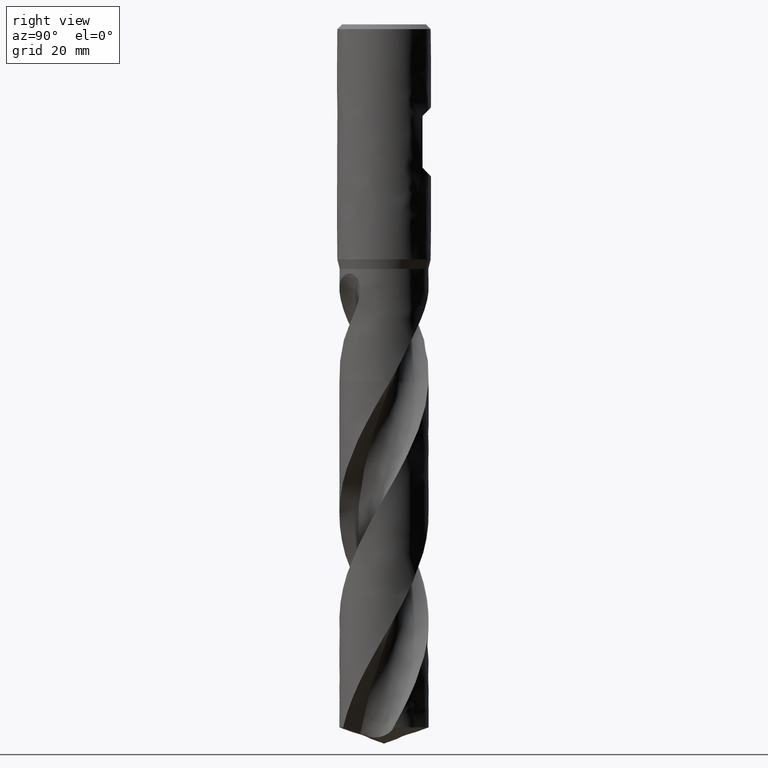
[diagram: clean part render]
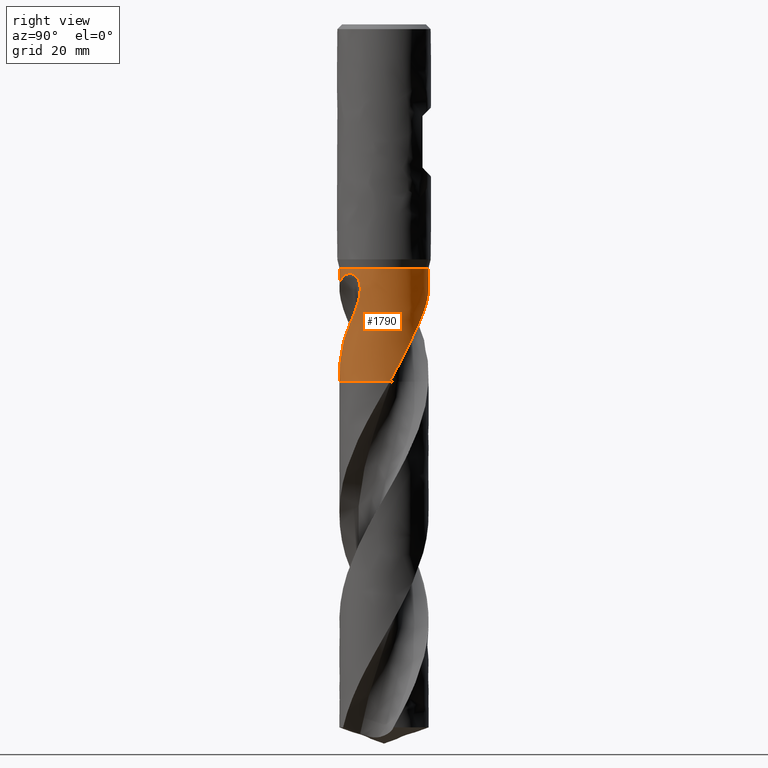
[diagram: same view with one face highlighted and labeled with its STEP entity id]
A machine part, right view. The second image highlights one B-rep face of the part: STEP entity #1790.
In plain terms, the highlighted face is a freeform B-spline surface patch.
Its self-contained STEP definition (entity closure, byte-faithful):
#75 = VERTEX_POINT('', #76);
#76 = CARTESIAN_POINT('', (-9.5, 3.76578890737811E-15, -52.));
#90 = EDGE_CURVE('', #75, #75, #91, .T.);
#91 = CIRCLE('', #92, 9.5);
#92 = AXIS2_PLACEMENT_3D('', #93, #94, #95);
#93 = CARTESIAN_POINT('', (1.94968771746041E-31, 3.18408167778312E-15, -52.));
#94 = DIRECTION('', (3.74939945665464E-33, 6.12323399573677E-17, -1.));
#95 = DIRECTION('', (-1., 6.12323399573677E-17, 0.));
#441 = VERTEX_POINT('', #442);
#442 = CARTESIAN_POINT('', (-9.42179916401131, -1.21642941066456, -76.));
#451 = VERTEX_POINT('', #452);
#452 = CARTESIAN_POINT('', (-2.42809042055657, -9.18446388797959, -58.6240445255203));
#469 = EDGE_CURVE('', #451, #441, #470, .T.);
#470 = B_SPLINE_CURVE_WITH_KNOTS('', 3, (#471, #472, #473, #474, #475, #476, #477, #478, #479, #480, #481, #482, #483, #484, #485, #486, #487, #488, #489, #490, #491, #492, #493, #494, #495, #496, #497, #498, #499, #500, #501, #502, #503, #504, #505, #506, #507, #508, #509, #510, #511, #512, #513, #514, #515, #516, #517, #518, #519, #520, #521, #522, #523, #524, #525, #526, #527, #528, #529, #530, #531, #532, #533, #534, #535, #536, #537, #538, #539, #540, #541, #542, #543, #544, #545, #546, #547, #548, #549, #550, #551, #552, #553, #554, #555, #556, #557, #558, #559, #560, #561, #562, #563, #564, #565, #566, #567, #568, #569, #570, #571, #572, #573), .UNSPECIFIED., .F., .U., (4, 3, 3, 3, 3, 3, 3, 3, 3, 3, 3, 3, 3, 3, 3, 3, 3, 3, 3, 3, 3, 3, 3, 3, 3, 3, 3, 3, 3, 3, 3, 3, 3, 3, 4), (0., 0.664021001737399, 1.32805920438737, 1.9921186725866, 2.65621614330069, 3.32036723116144, 3.9845755005403, 4.64884513065284, 5.31319017985085, 5.97761209065107, 6.64211063503046, 7.30670841731067, 7.97140576357779, 8.41463832060257, 9.41183494354617, 10.0767132998819, 10.519996615762, 11.184996724562, 11.8501409140488, 12.2935522650909, 12.4906069565131, 12.9339687758706, 13.3772208096155, 13.8204264306581, 14.2636502554231, 14.4606866810575, 14.6577309979868, 15.6548650591589, 16.3196123182008, 16.9842844579912, 17.9809367128803, 18.6455827294892, 19.6421569853909, 20.3067262794266, 20.741621615256), .UNSPECIFIED.);
#471 = CARTESIAN_POINT('', (-2.42809042055657, -9.18446388797959, -58.6240445255203));
#472 = CARTESIAN_POINT('', (-2.56621014698725, -9.14794927060763, -58.7931041815751));
#473 = CARTESIAN_POINT('', (-2.70281634141801, -9.10850037077427, -58.962798747042));
#474 = CARTESIAN_POINT('', (-2.83776459816165, -9.06626119662459, -59.1330819334859));
#475 = CARTESIAN_POINT('', (-2.97271635062779, -9.02402092830418, -59.3033695309744));
#476 = CARTESIAN_POINT('', (-3.106040184714, -8.97898075014124, -59.4742834754547));
#477 = CARTESIAN_POINT('', (-3.23759521466955, -8.93129202444691, -59.6457860735542));
#478 = CARTESIAN_POINT('', (-3.36915445762062, -8.88360177154083, -59.8172941639537));
#479 = CARTESIAN_POINT('', (-3.49897155144789, -8.83325307056214, -59.9894288597377));
#480 = CARTESIAN_POINT('', (-3.62691211260951, -8.78040480430182, -60.1621583976387));
#481 = CARTESIAN_POINT('', (-3.75485999549954, -8.72755351366323, -60.3348978204327));
#482 = CARTESIAN_POINT('', (-3.88096126062804, -8.67219025901471, -60.5082645406647));
#483 = CARTESIAN_POINT('', (-4.0051088762169, -8.61447055190559, -60.6822146277595));
#484 = CARTESIAN_POINT('', (-4.12926651509482, -8.55674618468838, -60.8561787590386));
#485 = CARTESIAN_POINT('', (-4.25149493753831, -8.49665341580021, -61.0307606968829));
#486 = CARTESIAN_POINT('', (-4.37169129712907, -8.43435327708094, -61.2059242452905));
#487 = CARTESIAN_POINT('', (-4.49189800528425, -8.37204777449706, -61.3811028747811));
#488 = CARTESIAN_POINT('', (-4.61009536818495, -8.30752244982494, -61.5568964501197));
#489 = CARTESIAN_POINT('', (-4.7261824251477, -8.2409465284168, -61.7332784856627));
#490 = CARTESIAN_POINT('', (-4.84228020643793, -8.1743644566074, -61.9096768156899));
#491 = CARTESIAN_POINT('', (-4.95628644038989, -8.1057207806859, -62.0866980018921));
#492 = CARTESIAN_POINT('', (-5.06812727897105, -8.03517802442171, -62.2643031378185));
#493 = CARTESIAN_POINT('', (-5.1799808156094, -7.96462725895475, -62.4419284384737));
#494 = CARTESIAN_POINT('', (-5.28968846125992, -7.89216432276, -62.6201688555821));
#495 = CARTESIAN_POINT('', (-5.39718164674231, -7.81795563252108, -62.798991832202));
#496 = CARTESIAN_POINT('', (-5.50468726868143, -7.74373835668521, -62.9778354978005));
#497 = CARTESIAN_POINT('', (-5.60999624424955, -7.66776215831041, -63.1572919523156));
#498 = CARTESIAN_POINT('', (-5.71304266497506, -7.59020049196164, -63.3373373426887));
#499 = CARTESIAN_POINT('', (-5.81610097094383, -7.51262987974881, -63.5174034992683));
#500 = CARTESIAN_POINT('', (-5.91690839814421, -7.43346455916267, -63.6980921498204));
#501 = CARTESIAN_POINT('', (-6.01542182297893, -7.35287020772359, -63.8793700875212));
#502 = CARTESIAN_POINT('', (-6.1139499600588, -7.27226382011931, -64.0606750977297));
#503 = CARTESIAN_POINT('', (-6.21020136702447, -7.19021341003693, -64.2425954955767));
#504 = CARTESIAN_POINT('', (-6.30414554762178, -7.10688039257739, -64.4250969733207));
#505 = CARTESIAN_POINT('', (-6.39810380208063, -7.02353489092413, -64.607625791774));
#506 = CARTESIAN_POINT('', (-6.48976831358361, -6.93889368235028, -64.7907628658476));
#507 = CARTESIAN_POINT('', (-6.57910988864599, -6.85312432932025, -64.9744830248909));
#508 = CARTESIAN_POINT('', (-6.63868451307606, -6.79593172900169, -65.0969910450103));
#509 = CARTESIAN_POINT('', (-6.6972310135912, -6.73823313706685, -65.2197683221804));
#510 = CARTESIAN_POINT('', (-6.75474064921287, -6.68008074516104, -65.342810126162));
#511 = CARTESIAN_POINT('', (-6.88412738653559, -6.54924791732496, -65.6196329124549));
#512 = CARTESIAN_POINT('', (-7.00829042518556, -6.41608936984821, -65.8978567033753));
#513 = CARTESIAN_POINT('', (-7.12718735446949, -6.28117826639955, -66.1774126477204));
#514 = CARTESIAN_POINT('', (-7.20646158494403, -6.19122662532039, -66.3638058749973));
#515 = CARTESIAN_POINT('', (-7.28340929877373, -6.10048084553325, -66.5508218520709));
#516 = CARTESIAN_POINT('', (-7.35803147684836, -6.00910748661646, -66.7384400184208));
#517 = CARTESIAN_POINT('', (-7.4077830836196, -5.94818764295218, -66.8635275657991));
#518 = CARTESIAN_POINT('', (-7.45650433193393, -5.88698501636759, -66.9888919230612));
#519 = CARTESIAN_POINT('', (-7.50419907410381, -5.82554686327554, -67.114525951698));
#520 = CARTESIAN_POINT('', (-7.5757492714515, -5.73337922008427, -67.3029982891839));
#521 = CARTESIAN_POINT('', (-7.64500228900175, -5.64066511319213, -67.4920903148475));
#522 = CARTESIAN_POINT('', (-7.71199877772058, -5.5475287157831, -67.6817563612721));
#523 = CARTESIAN_POINT('', (-7.77900978207629, -5.45437213919526, -67.8714635012453));
#524 = CARTESIAN_POINT('', (-7.84377111259324, -5.36078109482813, -68.0617661886785));
#525 = CARTESIAN_POINT('', (-7.90629750180377, -5.26692128410649, -68.2526541348844));
#526 = CARTESIAN_POINT('', (-7.94798005899039, -5.20435063230127, -68.3799075687453));
#527 = CARTESIAN_POINT('', (-7.98867142159565, -5.14165757483295, -68.5074296709657));
#528 = CARTESIAN_POINT('', (-8.02836937255407, -5.07890590755882, -68.6352273994837));
#529 = CARTESIAN_POINT('', (-8.04601138252477, -5.05101868635468, -68.6920214844758));
#530 = CARTESIAN_POINT('', (-8.06345740561578, -5.02311963517206, -68.74887100849));
#531 = CARTESIAN_POINT('', (-8.08070694029681, -4.99521524511596, -68.8057771090529));
#532 = CARTESIAN_POINT('', (-8.11951740973579, -4.93243195863829, -68.9338125904516));
#533 = CARTESIAN_POINT('', (-8.15733194086611, -4.86962408268026, -69.0621418481155));
#534 = CARTESIAN_POINT('', (-8.19417862380516, -4.80681148800061, -69.1907419181077));
#535 = CARTESIAN_POINT('', (-8.23101618273875, -4.7440144470265, -69.3193101440465));
#536 = CARTESIAN_POINT('', (-8.26688835864949, -4.68121035682083, -69.4481548969182));
#537 = CARTESIAN_POINT('', (-8.30185529123576, -4.61835454717163, -69.5772158268823));
#538 = CARTESIAN_POINT('', (-8.33681856245171, -4.55550531912333, -69.7062632429399));
#539 = CARTESIAN_POINT('', (-8.37087865122868, -4.49260211853035, -69.8355317928016));
#540 = CARTESIAN_POINT('', (-8.40412180202942, -4.42953008079342, -69.9649246147512));
#541 = CARTESIAN_POINT('', (-8.43736631822143, -4.36645545250754, -70.094322751234));
#542 = CARTESIAN_POINT('', (-8.46979557480713, -4.3032097558934, -70.2238493216764));
#543 = CARTESIAN_POINT('', (-8.50151335974726, -4.23960736319282, -70.3533723006289));
#544 = CARTESIAN_POINT('', (-8.5156135922358, -4.21133273665132, -70.4109521133203));
#545 = CARTESIAN_POINT('', (-8.52957352576754, -4.18298642947486, -70.4685313056039));
#546 = CARTESIAN_POINT('', (-8.54340282912872, -4.15454788144695, -70.5260960973301));
#547 = CARTESIAN_POINT('', (-8.55723268635252, -4.12610819445722, -70.5836631945221));
#548 = CARTESIAN_POINT('', (-8.57093333869107, -4.09757311770494, -70.6412144342042));
#549 = CARTESIAN_POINT('', (-8.58450306771317, -4.06894422183729, -70.6987496425698));
#550 = CARTESIAN_POINT('', (-8.65317208197187, -3.92406895901187, -70.9899040228234));
#551 = CARTESIAN_POINT('', (-8.71848197319047, -3.77679231614125, -71.2806853395261));
#552 = CARTESIAN_POINT('', (-8.78015662636426, -3.62751286924137, -71.5711798013115));
#553 = CARTESIAN_POINT('', (-8.82127251864604, -3.52799455267584, -71.7648402174563));
#554 = CARTESIAN_POINT('', (-8.86077811457631, -3.42757714699253, -71.9583893391098));
#555 = CARTESIAN_POINT('', (-8.89860973759847, -3.32637110646388, -72.151844435635));
#556 = CARTESIAN_POINT('', (-8.93643708548723, -3.22517650264581, -72.3452776709161));
#557 = CARTESIAN_POINT('', (-8.97259126244619, -3.12319426538755, -72.5386350111237));
#558 = CARTESIAN_POINT('', (-9.00703574499262, -3.02048126768322, -72.731899830287));
#559 = CARTESIAN_POINT('', (-9.05868402260693, -2.86646677747048, -73.0216935590726));
#560 = CARTESIAN_POINT('', (-9.1064975117939, -2.71078209255543, -73.3113139816061));
#561 = CARTESIAN_POINT('', (-9.15036720824054, -2.55358178924355, -73.6006786777801));
#562 = CARTESIAN_POINT('', (-9.17962296806054, -2.44874827796275, -73.7936497885319));
#563 = CARTESIAN_POINT('', (-9.2071278597392, -2.34323002707717, -73.9865236832668));
#564 = CARTESIAN_POINT('', (-9.23284864557938, -2.23707529775441, -74.1792759303952));
#565 = CARTESIAN_POINT('', (-9.27141454738177, -2.07790625477263, -74.4682898151628));
#566 = CARTESIAN_POINT('', (-9.30597036821796, -1.91729081565047, -74.7570741592301));
#567 = CARTESIAN_POINT('', (-9.33638481893462, -1.75553937944077, -75.0456267067595));
#568 = CARTESIAN_POINT('', (-9.35666680988667, -1.64767482530991, -75.2380490593019));
#569 = CARTESIAN_POINT('', (-9.37510940469164, -1.53929630629146, -75.4303867336179));
#570 = CARTESIAN_POINT('', (-9.39167966104092, -1.43050800221118, -75.6226444108446));
#571 = CARTESIAN_POINT('', (-9.40252326646247, -1.35931674125176, -75.7484581790306));
#572 = CARTESIAN_POINT('', (-9.41256545265735, -1.28794867866815, -75.8742437193807));
#573 = CARTESIAN_POINT('', (-9.4217991640113, -1.21642941066456, -76.));
#608 = VERTEX_POINT('', #609);
#609 = CARTESIAN_POINT('', (-0.671190592476418, -9.47625997894587, -76.));
#691 = EDGE_CURVE('', #692, #608, #694, .T.);
#692 = VERTEX_POINT('', #693);
#693 = CARTESIAN_POINT('', (1.80765603905733, -9.3264344550562, -71.5538400642549));
#694 = B_SPLINE_CURVE_WITH_KNOTS('', 3, (#695, #696, #697, #698, #699, #700, #701, #702, #703, #704, #705, #706, #707, #708, #709, #710, #711, #712, #713, #714, #715, #716, #717, #718, #719), .UNSPECIFIED., .F., .U., (4, 3, 3, 3, 3, 3, 3, 3, 4), (0., 0.664666604632813, 1.32924163047586, 2.32564516542004, 2.99016051706209, 3.65464647340236, 3.74221529584399, 4.74096633194589, 5.09620364157917), .UNSPECIFIED.);
#695 = CARTESIAN_POINT('', (1.80765603905735, -9.3264344550562, -71.5538400642549));
#696 = CARTESIAN_POINT('', (1.70383080271216, -9.34655793486945, -71.7485249914911));
#697 = CARTESIAN_POINT('', (1.59925857130008, -9.36502623086001, -71.9429912457542));
#698 = CARTESIAN_POINT('', (1.49407448889204, -9.38177709294152, -72.1372657228798));
#699 = CARTESIAN_POINT('', (1.38890489890907, -9.39852564706343, -72.3315134325683));
#700 = CARTESIAN_POINT('', (1.28312354123184, -9.41355791288961, -72.5255866836778));
#701 = CARTESIAN_POINT('', (1.17681050030732, -9.42682963919295, -72.7194802834997));
#702 = CARTESIAN_POINT('', (1.01741436643442, -9.44672806222906, -73.0101867662185));
#703 = CARTESIAN_POINT('', (0.856795933736179, -9.46267218294803, -73.300524449033));
#704 = CARTESIAN_POINT('', (0.695168342262644, -9.47453117446535, -73.5904368837824));
#705 = CARTESIAN_POINT('', (0.587376657451821, -9.48244010055993, -73.7837835116963));
#706 = CARTESIAN_POINT('', (0.479124513337036, -9.488533221429, -73.976957087829));
#707 = CARTESIAN_POINT('', (0.370473635622354, -9.49277352965449, -74.1699377177118));
#708 = CARTESIAN_POINT('', (0.26182756415531, -9.49701365030698, -74.3629098109614));
#709 = CARTESIAN_POINT('', (0.152780549040014, -9.49940065209794, -74.5557063897135));
#710 = CARTESIAN_POINT('', (0.0434443920116958, -9.49990066183868, -74.7483343497765));
#711 = CARTESIAN_POINT('', (0.0290356021344874, -9.49996655527674, -74.7737196923426));
#712 = CARTESIAN_POINT('', (0.014621717960082, -9.49999968972322, -74.7991022502394));
#713 = CARTESIAN_POINT('', (0.000203001738613576, -9.49999999783106, -74.8244820415565));
#714 = CARTESIAN_POINT('', (-0.164247168583704, -9.50000351190164, -75.1139468552562));
#715 = CARTESIAN_POINT('', (-0.329342870842114, -9.49573299061792, -75.4030778441181));
#716 = CARTESIAN_POINT('', (-0.494683214159033, -9.48711170576339, -75.6919064805463));
#717 = CARTESIAN_POINT('', (-0.553491722596719, -9.48404527386334, -75.7946374956251));
#718 = CARTESIAN_POINT('', (-0.612333695485989, -9.48042873282663, -75.897335535378));
#719 = CARTESIAN_POINT('', (-0.671190592476418, -9.47625997894587, -76.));
#722 = VERTEX_POINT('', #723);
#723 = CARTESIAN_POINT('', (4.18057605500147, -8.53069656290436, -67.1621538736389));
#732 = EDGE_CURVE('', #733, #722, #735, .T.);
#733 = VERTEX_POINT('', #734);
#734 = CARTESIAN_POINT('', (6.08431064233234, -7.29596902457798, -53.));
#735 = B_SPLINE_CURVE_WITH_KNOTS('', 3, (#736, #737, #738, #739, #740, #741, #742, #743, #744, #745, #746, #747, #748, #749, #750, #751, #752, #753, #754, #755, #756, #757, #758, #759, #760, #761, #762, #763, #764, #765, #766, #767, #768, #769, #770, #771, #772, #773, #774, #775, #776, #777, #778, #779, #780, #781, #782, #783, #784, #785, #786, #787, #788, #789, #790, #791, #792, #793, #794, #795, #796, #797, #798, #799, #800, #801, #802, #803, #804, #805, #806, #807, #808, #809, #810, #811, #812, #813, #814, #815, #816, #817, #818, #819, #820, #821, #822, #823, #824, #825, #826, #827, #828, #829, #830, #831, #832, #833, #834, #835, #836, #837, #838, #839, #840, #841, #842, #843, #844, #845, #846, #847, #848, #849, #850, #851, #852, #853, #854, #855, #856, #857, #858, #859, #860, #861, #862, #863, #864, #865, #866, #867, #868, #869, #870, #871, #872, #873, #874, #875, #876, #877, #878, #879, #880, #881, #882, #883, #884, #885, #886), .UNSPECIFIED., .F., .U., (4, 3, 3, 3, 3, 3, 3, 3, 3, 3, 3, 3, 3, 3, 3, 3, 3, 3, 3, 3, 3, 3, 3, 3, 3, 3, 3, 3, 3, 3, 3, 3, 3, 3, 3, 3, 3, 3, 3, 3, 3, 3, 3, 3, 3, 3, 3, 3, 3, 3, 4), (0., 0.295750701613611, 0.591146494411516, 0.886136219780952, 1.18068162134662, 1.47477226102505, 1.67090829418378, 1.86693653864515, 2.0628839741302, 2.25878358449028, 2.4546713778363, 2.65058280045642, 2.84654938006492, 3.04259632174566, 3.23874139975272, 3.43499506133292, 3.72912211942865, 4.02360583151871, 4.15480248306609, 4.21315838889276, 4.50827246287602, 4.80360570625005, 5.09912714077433, 5.54281140615083, 5.9868919158036, 6.43126260262602, 6.87583788931272, 7.32054904447658, 7.76534536990348, 8.21018590445512, 8.6550366609193, 9.09986917703285, 9.54466585799435, 9.98941203047338, 10.4340937454785, 10.8786986504267, 11.323218064789, 11.7676488447388, 12.211986757657, 12.6562282230344, 13.1003705019765, 13.5444193380113, 13.9883786759378, 14.4322502875982, 14.8760362335139, 15.3197378538355, 15.763351486596, 16.2068855515192, 16.6503499016536, 17.0937543649838, 17.2894845688813), .UNSPECIFIED.);
#736 = CARTESIAN_POINT('', (6.08431064233954, -7.29596902457198, -53.));
#737 = CARTESIAN_POINT('', (6.16002246828078, -7.23283083596759, -53.0000909679672));
#738 = CARTESIAN_POINT('', (6.23480996033427, -7.1684595200388, -53.0035286290472));
#739 = CARTESIAN_POINT('', (6.30832521473426, -7.10317062903236, -53.0107110941132));
#740 = CARTESIAN_POINT('', (6.38175224884692, -7.03796008645538, -53.0178849400275));
#741 = CARTESIAN_POINT('', (6.45403474992519, -6.97172172098937, -53.0288097449647));
#742 = CARTESIAN_POINT('', (6.52475917162869, -6.90489085737402, -53.0438795860422));
#743 = CARTESIAN_POINT('', (6.59538637162236, -6.83815186316775, -53.0589287112808));
#744 = CARTESIAN_POINT('', (6.66460413898759, -6.77068366282137, -53.0781470300262));
#745 = CARTESIAN_POINT('', (6.73193340302593, -6.70306442287583, -53.1018784330673));
#746 = CARTESIAN_POINT('', (6.79916125338058, -6.63554703338579, -53.1255740910422));
#747 = CARTESIAN_POINT('', (6.86466987203222, -6.56771306768855, -53.1538337818327));
#748 = CARTESIAN_POINT('', (6.92792941468992, -6.50029184153098, -53.1868833579249));
#749 = CARTESIAN_POINT('', (6.99109128809577, -6.4329747100355, -53.2198819072907));
#750 = CARTESIAN_POINT('', (7.05219009696137, -6.36587736739375, -53.2577575075459));
#751 = CARTESIAN_POINT('', (7.11068148521767, -6.29985784091852, -53.3005372028346));
#752 = CARTESIAN_POINT('', (7.14969078139615, -6.25582785054539, -53.3290679977721));
#753 = CARTESIAN_POINT('', (7.18761133432581, -6.21220037461072, -53.3598254876263));
#754 = CARTESIAN_POINT('', (7.22429027547639, -6.16924873997294, -53.3927524349244));
#755 = CARTESIAN_POINT('', (7.26094905931461, -6.12632070987468, -53.4256612868594));
#756 = CARTESIAN_POINT('', (7.29642401163674, -6.08400198880757, -53.4607886357816));
#757 = CARTESIAN_POINT('', (7.33057962502977, -6.04256587561104, -53.498019232516));
#758 = CARTESIAN_POINT('', (7.36472115841018, -6.00114684367696, -53.5352344816335));
#759 = CARTESIAN_POINT('', (7.39759897615497, -5.96054396871535, -53.574610970111));
#760 = CARTESIAN_POINT('', (7.42910323903509, -5.92101554327966, -53.6159769014767));
#761 = CARTESIAN_POINT('', (7.46059981263208, -5.88149676559404, -53.65733273661));
#762 = CARTESIAN_POINT('', (7.49077444805918, -5.84298854138572, -53.7007435601337));
#763 = CARTESIAN_POINT('', (7.51954896991116, -5.80571987690668, -53.7459889640753));
#764 = CARTESIAN_POINT('', (7.54832175603264, -5.76845346053998, -53.7912316387333));
#765 = CARTESIAN_POINT('', (7.57574053034083, -5.73236755144204, -53.8383798182231));
#766 = CARTESIAN_POINT('', (7.60176128361349, -5.69765086566006, -53.8871776741971));
#767 = CARTESIAN_POINT('', (7.62778517568056, -5.66292999212309, -53.9359814164894));
#768 = CARTESIAN_POINT('', (7.65245067631412, -5.62952589713213, -53.9865084904882));
#769 = CARTESIAN_POINT('', (7.67574667120268, -5.59758099892475, -54.0384835554704));
#770 = CARTESIAN_POINT('', (7.69904922485592, -5.56562710693663, -54.0904732535353));
#771 = CARTESIAN_POINT('', (7.72101510379714, -5.53508760278246, -54.1439846095844));
#772 = CARTESIAN_POINT('', (7.74166170589408, -5.50605793935151, -54.1987384714369));
#773 = CARTESIAN_POINT('', (7.76231677475985, -5.47701637142177, -54.2535147867803));
#774 = CARTESIAN_POINT('', (7.78167884322207, -5.44944773069988, -54.3096048762721));
#775 = CARTESIAN_POINT('', (7.79978757705647, -5.42340425865511, -54.3667389342676));
#776 = CARTESIAN_POINT('', (7.81790537568217, -5.39734774988226, -54.4239015921816));
#777 = CARTESIAN_POINT('', (7.83479021736066, -5.3727870081735, -54.482175243355));
#778 = CARTESIAN_POINT('', (7.85049726489905, -5.34973762850246, -54.5413088251058));
#779 = CARTESIAN_POINT('', (7.86621300767142, -5.32667548897005, -54.6004751425013));
#780 = CARTESIAN_POINT('', (7.88076631229576, -5.30510200761604, -54.6605629871346));
#781 = CARTESIAN_POINT('', (7.89422157852389, -5.2850038476022, -54.721345548282));
#782 = CARTESIAN_POINT('', (7.91438710226347, -5.25488256155632, -54.8124408977897));
#783 = CARTESIAN_POINT('', (7.93211903875689, -5.22802937360511, -54.9052414510248));
#784 = CARTESIAN_POINT('', (7.94764839486548, -5.20431407503354, -54.9990962678175));
#785 = CARTESIAN_POINT('', (7.96319658163494, -5.18057001965184, -55.0930648915326));
#786 = CARTESIAN_POINT('', (7.97656418783109, -5.15992909805947, -55.1882457842032));
#787 = CARTESIAN_POINT('', (7.98797668398105, -5.14220074444543, -55.2841159512546));
#788 = CARTESIAN_POINT('', (7.99306111214872, -5.13430251260401, -55.3268274642655));
#789 = CARTESIAN_POINT('', (7.99775978240537, -5.12697796501992, -55.3696963220916));
#790 = CARTESIAN_POINT('', (8.00209139454278, -5.12020832714689, -55.4126837151162));
#791 = CARTESIAN_POINT('', (8.00401808357781, -5.11719721104339, -55.4318043880106));
#792 = CARTESIAN_POINT('', (8.00587229823642, -5.11429562399612, -55.4509500601984));
#793 = CARTESIAN_POINT('', (8.00765562440428, -5.11150187331929, -55.4701175792788));
#794 = CARTESIAN_POINT('', (8.01667415720201, -5.09737348078976, -55.5670504357536));
#795 = CARTESIAN_POINT('', (8.02388688341126, -5.08599537363882, -55.6645985895201));
#796 = CARTESIAN_POINT('', (8.02948338951276, -5.077144522026, -55.7624109896484));
#797 = CARTESIAN_POINT('', (8.03508405191497, -5.06828709724054, -55.8602960311246));
#798 = CARTESIAN_POINT('', (8.03907150910569, -5.06195140086367, -55.9585391417867));
#799 = CARTESIAN_POINT('', (8.04160890053096, -5.05791718901182, -56.0568681279377));
#800 = CARTESIAN_POINT('', (8.04414790882336, -5.0538804064945, -56.1552597709192));
#801 = CARTESIAN_POINT('', (8.0452368962685, -5.05214444158361, -56.253814022286));
#802 = CARTESIAN_POINT('', (8.04501396864222, -5.0524994056763, -56.352320275329));
#803 = CARTESIAN_POINT('', (8.04467927386702, -5.05303233481207, -56.5002136915435));
#804 = CARTESIAN_POINT('', (8.04139052689936, -5.05827632692881, -56.6481614642026));
#805 = CARTESIAN_POINT('', (8.03552266411907, -5.06758083452338, -56.7956465580882));
#806 = CARTESIAN_POINT('', (8.02964956088466, -5.07689365176102, -56.9432633675402));
#807 = CARTESIAN_POINT('', (8.02118522639967, -5.09028381413494, -57.0905805403592));
#808 = CARTESIAN_POINT('', (8.01040983628041, -5.10718457222979, -57.2372440998512));
#809 = CARTESIAN_POINT('', (7.99962740515815, -5.12409637384951, -57.3840034942553));
#810 = CARTESIAN_POINT('', (7.98652060539455, -5.14453803444674, -57.5302336712269));
#811 = CARTESIAN_POINT('', (7.9712985814548, -5.16801692385936, -57.6756902676394));
#812 = CARTESIAN_POINT('', (7.95606954889786, -5.19150662356556, -57.821213836066));
#813 = CARTESIAN_POINT('', (7.93871228215579, -5.2180524821609, -57.9660605403372));
#814 = CARTESIAN_POINT('', (7.91938510333106, -5.24722208269652, -58.1100619047605));
#815 = CARTESIAN_POINT('', (7.90005201784793, -5.27640059787343, -58.2541072780316));
#816 = CARTESIAN_POINT('', (7.87873713478234, -5.3082199916907, -58.3973839204699));
#817 = CARTESIAN_POINT('', (7.85556243627836, -5.3422971472703, -58.53977740459));
#818 = CARTESIAN_POINT('', (7.83238329939872, -5.37638082924409, -58.6821981596485));
#819 = CARTESIAN_POINT('', (7.80733308008769, -5.41273832651307, -58.8237971461024));
#820 = CARTESIAN_POINT('', (7.78050549664119, -5.45103056464888, -58.9644976311754));
#821 = CARTESIAN_POINT('', (7.75367524675183, -5.48932660872065, -59.1052121007284));
#822 = CARTESIAN_POINT('', (7.72505729747375, -5.5295718098203, -59.2450779998827));
#823 = CARTESIAN_POINT('', (7.69472684335135, -5.57146110156126, -59.3840469245832));
#824 = CARTESIAN_POINT('', (7.66439569227076, -5.6133513558689, -59.5230190426262));
#825 = CARTESIAN_POINT('', (7.63234262999708, -5.65689850142256, -59.6611353272434));
#826 = CARTESIAN_POINT('', (7.59863194107776, -5.70182362266967, -59.7983699608412));
#827 = CARTESIAN_POINT('', (7.56492263440806, -5.7467469018384, -59.9355989673656));
#828 = CARTESIAN_POINT('', (7.52954772111921, -5.79305876467144, -60.071980943347));
#829 = CARTESIAN_POINT('', (7.49256447016876, -5.84050320266715, -60.2075076309458));
#830 = CARTESIAN_POINT('', (7.45558419854282, -5.88794381859818, -60.3430234006839));
#831 = CARTESIAN_POINT('', (7.41698743469225, -5.93652761327663, -60.4777123927568));
#832 = CARTESIAN_POINT('', (7.37682476493685, -5.98602174966101, -60.6115778729929));
#833 = CARTESIAN_POINT('', (7.33666665581688, -6.03551026578376, -60.7454281522561));
#834 = CARTESIAN_POINT('', (7.29493552142676, -6.08591809061481, -60.8784793460499));
#835 = CARTESIAN_POINT('', (7.25168096289683, -6.13702885868722, -61.0107458072878));
#836 = CARTESIAN_POINT('', (7.20843267329005, -6.18813221922876, -61.1429930990252));
#837 = CARTESIAN_POINT('', (7.16365445281936, -6.23994648230372, -61.2744765972998));
#838 = CARTESIAN_POINT('', (7.11739826134132, -6.29226842954555, -61.4052209768012));
#839 = CARTESIAN_POINT('', (7.0711500597144, -6.34458133919574, -61.5359427727717));
#840 = CARTESIAN_POINT('', (7.02341795292703, -6.39740898946077, -61.6659435181553));
#841 = CARTESIAN_POINT('', (6.97425902929326, -6.45055896743231, -61.7952578819373));
#842 = CARTESIAN_POINT('', (6.92510955815346, -6.50369872549241, -61.9245473805849));
#843 = CARTESIAN_POINT('', (6.87452802971784, -6.55716698027475, -62.0531663474971));
#844 = CARTESIAN_POINT('', (6.82257269923959, -6.61078677341741, -62.181154004241));
#845 = CARTESIAN_POINT('', (6.77062772833179, -6.6643958751061, -62.3091161410404));
#846 = CARTESIAN_POINT('', (6.71730391552183, -6.71816220837355, -62.4364606778109));
#847 = CARTESIAN_POINT('', (6.66266461391873, -6.77191998198703, -62.5632328069923));
#848 = CARTESIAN_POINT('', (6.6080367295936, -6.82566652252418, -62.6899784462189));
#849 = CARTESIAN_POINT('', (6.55208867424839, -6.87940962606717, -62.8161637867865));
#850 = CARTESIAN_POINT('', (6.4948907459119, -6.93299316303341, -62.9418401767279));
#851 = CARTESIAN_POINT('', (6.43770523290024, -6.98656506921096, -63.0674892874784));
#852 = CARTESIAN_POINT('', (6.37926547818257, -7.03998203626982, -63.1926402181514));
#853 = CARTESIAN_POINT('', (6.31965039128464, -7.09309656863177, -63.3173507587181));
#854 = CARTESIAN_POINT('', (6.26004861473348, -7.14619924203517, -63.4420334549817));
#855 = CARTESIAN_POINT('', (6.19926836463586, -7.19900287914346, -63.5662862244403));
#856 = CARTESIAN_POINT('', (6.1373951485772, -7.25137095935803, -63.6901705646429));
#857 = CARTESIAN_POINT('', (6.07553494999845, -7.30372802187423, -63.8140288408711));
#858 = CARTESIAN_POINT('', (6.01257677799485, -7.35565438253876, -63.9375264805283));
#859 = CARTESIAN_POINT('', (5.9486096157223, -7.40702663959946, -64.0607251497948));
#860 = CARTESIAN_POINT('', (5.88465534604074, -7.45838854257418, -64.1838989883514));
#861 = CARTESIAN_POINT('', (5.81968829079896, -7.50919989954618, -64.3067818991072));
#862 = CARTESIAN_POINT('', (5.75380698278474, -7.55934555400517, -64.4294401837262));
#863 = CARTESIAN_POINT('', (5.68793869290229, -7.60948129969402, -64.5520742310955));
#864 = CARTESIAN_POINT('', (5.62115244545764, -7.65895464953468, -64.6744911642182));
#865 = CARTESIAN_POINT('', (5.55355750049565, -7.70765846990438, -64.796762156195));
#866 = CARTESIAN_POINT('', (5.48597560113319, -7.75635289059876, -64.919009550277));
#867 = CARTESIAN_POINT('', (5.41758134220783, -7.80428088237212, -65.0411181309239));
#868 = CARTESIAN_POINT('', (5.34849579638872, -7.85134337015091, -65.1631640021814));
#869 = CARTESIAN_POINT('', (5.27942337779852, -7.89839691539268, -65.2851866830005));
#870 = CARTESIAN_POINT('', (5.20965708607484, -7.9445872232584, -65.407154437668));
#871 = CARTESIAN_POINT('', (5.13932577730234, -7.98982669115899, -65.5291440573674));
#872 = CARTESIAN_POINT('', (5.06900841547086, -8.03505718791711, -65.6511094861047));
#873 = CARTESIAN_POINT('', (4.99812208474638, -8.07933995477596, -65.7731034102917));
#874 = CARTESIAN_POINT('', (4.92679923640419, -8.12260114028557, -65.8951993404108));
#875 = CARTESIAN_POINT('', (4.85548918073648, -8.16585456634254, -66.0172733710472));
#876 = CARTESIAN_POINT('', (4.78373874781411, -8.20808924911329, -66.139456363853));
#877 = CARTESIAN_POINT('', (4.71168456477132, -8.24924412065116, -66.2618186256641));
#878 = CARTESIAN_POINT('', (4.63964170722197, -8.29039252345664, -66.3841616545462));
#879 = CARTESIAN_POINT('', (4.56729101458934, -8.33046388250002, -66.5066911776975));
#880 = CARTESIAN_POINT('', (4.4947725471373, -8.36940976111839, -66.6294733893994));
#881 = CARTESIAN_POINT('', (4.42226387280451, -8.40835038036425, -66.7522390202097));
#882 = CARTESIAN_POINT('', (4.34958306966996, -8.44616823553104, -66.8752649788058));
#883 = CARTESIAN_POINT('', (4.27687240355941, -8.48282750288346, -66.9986121998525));
#884 = CARTESIAN_POINT('', (4.24477603403608, -8.49900985210866, -67.0530608550247));
#885 = CARTESIAN_POINT('', (4.21267323221106, -8.51496693408846, -67.1075731865274));
#886 = CARTESIAN_POINT('', (4.18057605500147, -8.53069656290436, -67.1621538736389));
#888 = EDGE_CURVE('', #733, #889, #891, .T.);
#889 = VERTEX_POINT('', #890);
#890 = CARTESIAN_POINT('', (6.07812561107762, -7.30112245178522, -53.));
#891 = LINE('', #892, #893);
#892 = CARTESIAN_POINT('', (6.08431064233234, -7.29596902457798, -53.));
#893 = VECTOR('', #894, 0.00805061634920942);
#894 = DIRECTION('', (-0.00618503125471914, -0.00515342720723844, -7.105427357601E-15));
#896 = EDGE_CURVE('', #889, #451, #897, .T.);
#897 = B_SPLINE_CURVE_WITH_KNOTS('', 3, (#898, #899, #900, #901, #902, #903, #904, #905, #906, #907, #908, #909, #910, #911, #912, #913, #914, #915, #916, #917, #918, #919, #920, #921, #922, #923, #924, #925, #926, #927, #928, #929, #930, #931, #932, #933, #934, #935, #936, #937, #938, #939, #940, #941, #942, #943, #944, #945, #946, #947, #948, #949, #950, #951, #952, #953, #954, #955, #956, #957, #958, #959, #960, #961, #962, #963, #964, #965, #966, #967, #968, #969, #970, #971, #972, #973, #974, #975, #976), .UNSPECIFIED., .F., .U., (4, 3, 3, 3, 3, 3, 3, 3, 3, 3, 3, 3, 3, 3, 3, 3, 3, 3, 3, 3, 3, 3, 3, 3, 3, 3, 4), (0., 0.295708731425449, 0.591054337609765, 0.886102790518524, 1.18091039845601, 1.47552386113005, 1.76998131136293, 2.06431365199391, 2.50469028138423, 2.94480570059965, 3.38473670263969, 3.82453993659359, 4.26425777280409, 4.70392240014883, 5.14355869612111, 5.5831862514705, 6.23989366039145, 6.89667551486033, 7.33640044838926, 7.42383745423452, 7.4821746824186, 8.14345946706883, 8.80461263535817, 9.46570489311712, 10.1267907552381, 10.7879201122116, 10.9299678218579), .UNSPECIFIED.);
#898 = CARTESIAN_POINT('', (6.07812561107254, -7.30112245178945, -53.));
#899 = CARTESIAN_POINT('', (6.00237105875756, -7.36418750618642, -53.0000908591267));
#900 = CARTESIAN_POINT('', (5.92559198632018, -7.42610495587795, -53.0035151821377));
#901 = CARTESIAN_POINT('', (5.8480754565794, -7.48665569224027, -53.0098993407232));
#902 = CARTESIAN_POINT('', (5.77065411580521, -7.54713207333875, -53.0162756596716));
#903 = CARTESIAN_POINT('', (5.69240744513442, -7.60631623101005, -53.0256111338372));
#904 = CARTESIAN_POINT('', (5.61357280650007, -7.66405899938948, -53.0375688331412));
#905 = CARTESIAN_POINT('', (5.53481748501351, -7.72174367158464, -53.0495145015585));
#906 = CARTESIAN_POINT('', (5.45539916346247, -7.77804646620822, -53.0640883517652));
#907 = CARTESIAN_POINT('', (5.3755155896481, -7.83286870472435, -53.0809927257961));
#908 = CARTESIAN_POINT('', (5.29569722396091, -7.88764619241962, -53.0978833009629));
#909 = CARTESIAN_POINT('', (5.21534910378104, -7.94099089462986, -53.1171143289398));
#910 = CARTESIAN_POINT('', (5.13463781499371, -7.99284020288386, -53.1384256706272));
#911 = CARTESIAN_POINT('', (5.0539796785471, -8.04465536582635, -53.1597229777512));
#912 = CARTESIAN_POINT('', (4.97290245988686, -8.09501373543959, -53.1831127959553));
#913 = CARTESIAN_POINT('', (4.891548305804, -8.14387838637055, -53.2083688621452));
#914 = CARTESIAN_POINT('', (4.81023723278085, -8.19271716104517, -53.2336115539954));
#915 = CARTESIAN_POINT('', (4.72860032379353, -8.24009363644957, -53.260733890665));
#916 = CARTESIAN_POINT('', (4.64676049514806, -8.28598919265145, -53.2895392784933));
#917 = CARTESIAN_POINT('', (4.56495543875363, -8.33186524866828, -53.3183324274375));
#918 = CARTESIAN_POINT('', (4.48290431826922, -8.37628614415269, -53.3488225621757));
#919 = CARTESIAN_POINT('', (4.40071480703705, -8.41924635505628, -53.3808386474456));
#920 = CARTESIAN_POINT('', (4.2777438149603, -8.48352292362862, -53.4287407423606));
#921 = CARTESIAN_POINT('', (4.15435973606718, -8.54458260501355, -53.4800966294973));
#922 = CARTESIAN_POINT('', (4.03087412734024, -8.60244463914409, -53.5344219670538));
#923 = CARTESIAN_POINT('', (3.90746176432005, -8.66027235230698, -53.5887150814405));
#924 = CARTESIAN_POINT('', (3.78383768677669, -8.71495861491489, -53.6460234148324));
#925 = CARTESIAN_POINT('', (3.66026824132798, -8.76655213875591, -53.7059491895446));
#926 = CARTESIAN_POINT('', (3.53675057395178, -8.81812404387711, -53.7658498541569));
#927 = CARTESIAN_POINT('', (3.41319243359023, -8.86664595219994, -53.8284124839945));
#928 = CARTESIAN_POINT('', (3.28982624569915, -8.91218510092273, -53.8933072818731));
#929 = CARTESIAN_POINT('', (3.16649588674863, -8.9577110238218, -53.9581832325142));
#930 = CARTESIAN_POINT('', (3.04327434698959, -9.0002868689845, -54.0254341527127));
#931 = CARTESIAN_POINT('', (2.9203678976942, -9.03999177776822, -54.0947839977474));
#932 = CARTESIAN_POINT('', (2.79748531346529, -9.07968897694603, -54.1641203769414));
#933 = CARTESIAN_POINT('', (2.67484438338425, -9.11654024285689, -54.2355966066721));
#934 = CARTESIAN_POINT('', (2.5526306868008, -9.15063257795924, -54.3089795451779));
#935 = CARTESIAN_POINT('', (2.43043177891055, -9.18472078765586, -54.3823536038463));
#936 = CARTESIAN_POINT('', (2.30859466807708, -9.21606910020121, -54.4576734252225));
#937 = CARTESIAN_POINT('', (2.18728817428872, -9.24476989668322, -54.5347404769465));
#938 = CARTESIAN_POINT('', (2.06598949732082, -9.27346884372612, -54.6118025625777));
#939 = CARTESIAN_POINT('', (1.94516271004809, -9.29953459373637, -54.6906491386606));
#940 = CARTESIAN_POINT('', (1.82496277386765, -9.32306338463916, -54.7711099053624));
#941 = CARTESIAN_POINT('', (1.70476522744057, -9.34659170775461, -54.8515690723845));
#942 = CARTESIAN_POINT('', (1.58514151326344, -9.36759361722465, -54.9336780062185));
#943 = CARTESIAN_POINT('', (1.46623492753183, -9.38616828835318, -55.0172896990356));
#944 = CARTESIAN_POINT('', (1.28861449662552, -9.41391478422213, -55.142187279902));
#945 = CARTESIAN_POINT('', (1.11246454471127, -9.4362642014965, -55.270528152632));
#946 = CARTESIAN_POINT('', (0.938222172532696, -9.45355695783169, -55.401901085653));
#947 = CARTESIAN_POINT('', (0.763960047921466, -9.47085167450523, -55.533288911349));
#948 = CARTESIAN_POINT('', (0.591465466864672, -9.48310276467801, -55.6678160144));
#949 = CARTESIAN_POINT('', (0.421135440082135, -9.49066093278624, -55.8051466814452));
#950 = CARTESIAN_POINT('', (0.307097028096013, -9.495721235452, -55.8970915456752));
#951 = CARTESIAN_POINT('', (0.193981360327836, -9.49868067615051, -55.9903318228406));
#952 = CARTESIAN_POINT('', (0.0818991498374819, -9.49964696866447, -56.0847821722314));
#953 = CARTESIAN_POINT('', (0.0596121878152337, -9.49983911088282, -56.1035631307854));
#954 = CARTESIAN_POINT('', (0.0373652444463253, -9.49995247092678, -56.1223926519057));
#955 = CARTESIAN_POINT('', (0.0151591618398039, -9.49998790524558, -56.141270115684));
#956 = CARTESIAN_POINT('', (0.000343451997408806, -9.50001154672234, -56.1538649992956));
#957 = CARTESIAN_POINT('', (-0.0144541666770689, -9.50000050032839, -56.1664813074935));
#958 = CARTESIAN_POINT('', (-0.0292334462802226, -9.49995502124187, -56.1791188601169));
#959 = CARTESIAN_POINT('', (-0.196764764340411, -9.49943949061295, -56.322372516919));
#960 = CARTESIAN_POINT('', (-0.361995132001477, -9.49449707431042, -56.4684048993789));
#961 = CARTESIAN_POINT('', (-0.524581481272068, -9.48550548307819, -56.6169762586914));
#962 = CARTESIAN_POINT('', (-0.687135470772531, -9.47651568145391, -56.7655180476553));
#963 = CARTESIAN_POINT('', (-0.847148981238421, -9.46347310694268, -56.9166861558658));
#964 = CARTESIAN_POINT('', (-1.0043285038325, -9.44676263364278, -57.0702590599326));
#965 = CARTESIAN_POINT('', (-1.16149354583637, -9.43005369984059, -57.2238178156788));
#966 = CARTESIAN_POINT('', (-1.31591357718004, -9.40966827770713, -57.3798675616588));
#967 = CARTESIAN_POINT('', (-1.46732479138966, -9.3859979733949, -57.5382174630435));
#968 = CARTESIAN_POINT('', (-1.61873454079419, -9.36232789807749, -57.6965658324957));
#969 = CARTESIAN_POINT('', (-1.76721405193548, -9.33536085647169, -57.857296644978));
#970 = CARTESIAN_POINT('', (-1.91252704677711, -9.30549516658549, -58.0202431542571));
#971 = CARTESIAN_POINT('', (-2.05784960220331, -9.27562751174458, -58.1832003842834));
#972 = CARTESIAN_POINT('', (-2.20007221593085, -9.24284737818917, -58.3484547993857));
#973 = CARTESIAN_POINT('', (-2.3389965132968, -9.20755642452358, -58.5158476574469));
#974 = CARTESIAN_POINT('', (-2.36884525325502, -9.19997394601683, -58.5518130428105));
#975 = CARTESIAN_POINT('', (-2.39854377859026, -9.192275113457, -58.5878791981085));
#976 = CARTESIAN_POINT('', (-2.42809042055657, -9.1844638879796, -58.6240445255203));
#1063 = EDGE_CURVE('', #722, #692, #1064, .T.);
#1064 = B_SPLINE_CURVE_WITH_KNOTS('', 3, (#1065, #1066, #1067, #1068, #1069, #1070, #1071, #1072, #1073, #1074, #1075, #1076, #1077, #1078, #1079, #1080, #1081, #1082, #1083, #1084, #1085, #1086, #1087, #1088, #1089, #1090, #1091, #1092, #1093, #1094, #1095, #1096, #1097, #1098), .UNSPECIFIED., .F., .U., (4, 3, 3, 3, 3, 3, 3, 3, 3, 3, 3, 4), (0., 0.664751043577411, 1.32969653160185, 1.7730342875714, 1.970075313831, 2.413364394255, 2.85655198632643, 3.29969981451096, 3.74287228829654, 3.93989978520851, 4.93680584848544, 5.06048680450916), .UNSPECIFIED.);
#1065 = CARTESIAN_POINT('', (4.18057605500147, -8.53069656290436, -67.1621538736389));
#1066 = CARTESIAN_POINT('', (4.07156563340535, -8.58411850270844, -67.3475241843735));
#1067 = CARTESIAN_POINT('', (3.96297390854473, -8.63474263286658, -67.5339709593663));
#1068 = CARTESIAN_POINT('', (3.85505439283183, -8.68265832728174, -67.7214724050349));
#1069 = CARTESIAN_POINT('', (3.74710330988671, -8.73058803738111, -67.9090286962208));
#1070 = CARTESIAN_POINT('', (3.63980341624732, -8.77581641839924, -68.0976740599016));
#1071 = CARTESIAN_POINT('', (3.53346766893558, -8.81842424884326, -68.2874247843039));
#1072 = CARTESIAN_POINT('', (3.46257065189951, -8.84683208117836, -68.4139368997557));
#1073 = CARTESIAN_POINT('', (3.39209619324511, -8.87407777187757, -68.5409540937653));
#1074 = CARTESIAN_POINT('', (3.32215783705107, -8.90018355460833, -68.6684916245536));
#1075 = CARTESIAN_POINT('', (3.2910738039548, -8.91178624387023, -68.7251755537131));
#1076 = CARTESIAN_POINT('', (3.26009568033432, -8.92316385113747, -68.7819642845501));
#1077 = CARTESIAN_POINT('', (3.22923272778872, -8.9343189997771, -68.8388584683969));
#1078 = CARTESIAN_POINT('', (3.1597994218787, -8.95941507076458, -68.9668550126583));
#1079 = CARTESIAN_POINT('', (3.09094243786282, -8.98338870208461, -69.0953902105793));
#1080 = CARTESIAN_POINT('', (3.02259364642433, -9.00632708980723, -69.2243715470937));
#1081 = CARTESIAN_POINT('', (2.95426050302805, -9.02926022592479, -69.3533233541116));
#1082 = CARTESIAN_POINT('', (2.88643106599652, -9.05116064965312, -69.4827299266204));
#1083 = CARTESIAN_POINT('', (2.81894968150472, -9.07212889531142, -69.612462386602));
#1084 = CARTESIAN_POINT('', (2.75147435160964, -9.09309525964686, -69.7421832066664));
#1085 = CARTESIAN_POINT('', (2.68434351242241, -9.11313131139585, -69.8722362219585));
#1086 = CARTESIAN_POINT('', (2.61731130065281, -9.13234261049567, -70.002457603875));
#1087 = CARTESIAN_POINT('', (2.55027536089665, -9.15155497802906, -70.1326862280344));
#1088 = CARTESIAN_POINT('', (2.48333502912163, -9.16994392371688, -70.2630875648955));
#1089 = CARTESIAN_POINT('', (2.41616091208594, -9.18760939781987, -70.3934639272503));
#1090 = CARTESIAN_POINT('', (2.38629635839703, -9.19546318917686, -70.4514272030644));
#1091 = CARTESIAN_POINT('', (2.35638405557413, -9.20317397051248, -70.5093854689551));
#1092 = CARTESIAN_POINT('', (2.32639134422083, -9.21074933507227, -70.5673196218038));
#1093 = CARTESIAN_POINT('', (2.17463630357501, -9.24907863925342, -70.8604508301416));
#1094 = CARTESIAN_POINT('', (2.02087741151424, -9.28391894345631, -71.1530290640117));
#1095 = CARTESIAN_POINT('', (1.86554331162769, -9.31502808114079, -71.4451389272259));
#1096 = CARTESIAN_POINT('', (1.84627181686528, -9.31888763023135, -71.4813794803503));
#1097 = CARTESIAN_POINT('', (1.8269758068944, -9.32268988416234, -71.517613153265));
#1098 = CARTESIAN_POINT('', (1.80765603905733, -9.3264344550562, -71.5538400642549));
#1120 = VERTEX_POINT('', #1121);
#1121 = CARTESIAN_POINT('', (0.671190592476414, 9.47625997894588, -76.));
#1203 = EDGE_CURVE('', #1204, #1120, #1206, .T.);
#1204 = VERTEX_POINT('', #1205);
#1205 = CARTESIAN_POINT('', (-1.80765603905731, 9.32643445505622, -71.5538400642549));
#1206 = B_SPLINE_CURVE_WITH_KNOTS('', 3, (#1207, #1208, #1209, #1210, #1211, #1212, #1213, #1214, #1215, #1216, #1217, #1218, #1219, #1220, #1221, #1222, #1223, #1224, #1225, #1226, #1227, #1228, #1229, #1230, #1231), .UNSPECIFIED., .F., .U., (4, 3, 3, 3, 3, 3, 3, 3, 4), (0., 0.664666604632812, 1.32924163047585, 2.32564516542003, 2.99016051706208, 3.65464647340236, 3.74221529584399, 4.74096633194589, 5.09620364157915), .UNSPECIFIED.);
#1207 = CARTESIAN_POINT('', (-1.80765603905733, 9.32643445505621, -71.5538400642549));
#1208 = CARTESIAN_POINT('', (-1.70383080271215, 9.34655793486946, -71.7485249914911));
#1209 = CARTESIAN_POINT('', (-1.59925857130007, 9.36502623086002, -71.9429912457543));
#1210 = CARTESIAN_POINT('', (-1.49407448889202, 9.38177709294153, -72.1372657228798));
#1211 = CARTESIAN_POINT('', (-1.38890489890906, 9.39852564706344, -72.3315134325683));
#1212 = CARTESIAN_POINT('', (-1.28312354123183, 9.41355791288963, -72.5255866836778));
#1213 = CARTESIAN_POINT('', (-1.17681050030731, 9.42682963919296, -72.7194802834997));
#1214 = CARTESIAN_POINT('', (-1.01741436643442, 9.44672806222908, -73.0101867662186));
#1215 = CARTESIAN_POINT('', (-0.856795933736174, 9.46267218294803, -73.300524449033));
#1216 = CARTESIAN_POINT('', (-0.69516834226264, 9.47453117446535, -73.5904368837824));
#1217 = CARTESIAN_POINT('', (-0.587376657451815, 9.48244010055993, -73.7837835116963));
#1218 = CARTESIAN_POINT('', (-0.479124513337031, 9.48853322142901, -73.976957087829));
#1219 = CARTESIAN_POINT('', (-0.370473635622349, 9.4927735296545, -74.1699377177119));
#1220 = CARTESIAN_POINT('', (-0.261827564155305, 9.49701365030699, -74.3629098109614));
#1221 = CARTESIAN_POINT('', (-0.152780549040007, 9.49940065209795, -74.5557063897135));
#1222 = CARTESIAN_POINT('', (-0.0434443920116898, 9.49990066183869, -74.7483343497765));
#1223 = CARTESIAN_POINT('', (-0.0290356021344814, 9.49996655527675, -74.7737196923426));
#1224 = CARTESIAN_POINT('', (-0.014621717960069, 9.49999968972323, -74.7991022502394));
#1225 = CARTESIAN_POINT('', (-0.000203001738600543, 9.49999999783107, -74.8244820415565));
#1226 = CARTESIAN_POINT('', (0.164247168583719, 9.50000351190165, -75.1139468552563));
#1227 = CARTESIAN_POINT('', (0.329342870842125, 9.49573299061793, -75.4030778441182));
#1228 = CARTESIAN_POINT('', (0.494683214159046, 9.48711170576339, -75.6919064805463));
#1229 = CARTESIAN_POINT('', (0.553491722596728, 9.48404527386335, -75.7946374956251));
#1230 = CARTESIAN_POINT('', (0.612333695485989, 9.48042873282664, -75.897335535378));
#1231 = CARTESIAN_POINT('', (0.671190592476414, 9.47625997894588, -76.));
#1234 = VERTEX_POINT('', #1235);
#1235 = CARTESIAN_POINT('', (-4.18057605500148, 8.53069656290436, -67.1621538736389));
#1244 = EDGE_CURVE('', #1245, #1234, #1247, .T.);
#1245 = VERTEX_POINT('', #1246);
#1246 = CARTESIAN_POINT('', (-6.08431064234589, 7.29596902456668, -53.));
#1247 = B_SPLINE_CURVE_WITH_KNOTS('', 3, (#1248, #1249, #1250, #1251, #1252, #1253, #1254, #1255, #1256, #1257, #1258, #1259, #1260, #1261, #1262, #1263, #1264, #1265, #1266, #1267, #1268, #1269, #1270, #1271, #1272, #1273, #1274, #1275, #1276, #1277, #1278, #1279, #1280, #1281, #1282, #1283, #1284, #1285, #1286, #1287, #1288, #1289, #1290, #1291, #1292, #1293, #1294, #1295, #1296, #1297, #1298, #1299, #1300, #1301, #1302, #1303, #1304, #1305, #1306, #1307, #1308, #1309, #1310, #1311, #1312, #1313, #1314, #1315, #1316, #1317, #1318, #1319, #1320, #1321, #1322, #1323, #1324, #1325, #1326, #1327, #1328, #1329, #1330, #1331, #1332, #1333, #1334, #1335, #1336, #1337, #1338, #1339, #1340, #1341, #1342, #1343, #1344, #1345, #1346, #1347, #1348, #1349, #1350, #1351, #1352, #1353, #1354, #1355, #1356, #1357, #1358, #1359, #1360, #1361, #1362, #1363, #1364, #1365, #1366, #1367, #1368, #1369, #1370, #1371, #1372, #1373, #1374, #1375, #1376, #1377, #1378, #1379, #1380, #1381, #1382, #1383, #1384, #1385, #1386, #1387, #1388, #1389, #1390, #1391, #1392, #1393, #1394, #1395, #1396, #1397, #1398), .UNSPECIFIED., .F., .U., (4, 3, 3, 3, 3, 3, 3, 3, 3, 3, 3, 3, 3, 3, 3, 3, 3, 3, 3, 3, 3, 3, 3, 3, 3, 3, 3, 3, 3, 3, 3, 3, 3, 3, 3, 3, 3, 3, 3, 3, 3, 3, 3, 3, 3, 3, 3, 3, 3, 3, 4), (0., 0.29575070161361, 0.59114649441152, 0.886136219780956, 1.18068162134663, 1.47477226102507, 1.67090829418379, 1.86693653864516, 2.06288397413021, 2.25878358449029, 2.45467137783631, 2.65058280045643, 2.84654938006493, 3.04259632174567, 3.23874139975273, 3.43499506133293, 3.72912211942866, 4.02360583151872, 4.1548024830661, 4.21315838889277, 4.50827246287603, 4.80360570625006, 5.09912714077435, 5.54281140615085, 5.98689191580362, 6.43126260262604, 6.87583788931274, 7.32054904447661, 7.76534536990351, 8.21018590445514, 8.65503666091932, 9.09986917703287, 9.54466585799437, 9.9894120304734, 10.4340937454786, 10.8786986504267, 11.323218064789, 11.7676488447388, 12.211986757657, 12.6562282230344, 13.1003705019765, 13.5444193380114, 13.9883786759378, 14.4322502875982, 14.876036233514, 15.3197378538356, 15.7633514865961, 16.2068855515192, 16.6503499016537, 17.0937543649838, 17.2894845688826), .UNSPECIFIED.);
#1248 = CARTESIAN_POINT('', (-6.08431064233851, 7.29596902457284, -53.));
#1249 = CARTESIAN_POINT('', (-6.16002246827976, 7.23283083596846, -53.0000909679672));
#1250 = CARTESIAN_POINT('', (-6.23480996033326, 7.16845952003969, -53.0035286290472));
#1251 = CARTESIAN_POINT('', (-6.30832521473326, 7.10317062903325, -53.0107110941131));
#1252 = CARTESIAN_POINT('', (-6.38175224884593, 7.03796008645629, -53.0178849400274));
#1253 = CARTESIAN_POINT('', (-6.45403474992421, 6.97172172099028, -53.0288097449646));
#1254 = CARTESIAN_POINT('', (-6.52475917162772, 6.90489085737493, -53.043879586042));
#1255 = CARTESIAN_POINT('', (-6.59538637162141, 6.83815186316867, -53.0589287112806));
#1256 = CARTESIAN_POINT('', (-6.66460413898665, 6.7706836628223, -53.0781470300259));
#1257 = CARTESIAN_POINT('', (-6.73193340302502, 6.70306442287675, -53.101878433067));
#1258 = CARTESIAN_POINT('', (-6.79916125337968, 6.63554703338672, -53.1255740910419));
#1259 = CARTESIAN_POINT('', (-6.86466987203135, 6.56771306768947, -53.1538337818323));
#1260 = CARTESIAN_POINT('', (-6.92792941468906, 6.5002918415319, -53.1868833579244));
#1261 = CARTESIAN_POINT('', (-6.99109128809493, 6.43297471003642, -53.2198819072902));
#1262 = CARTESIAN_POINT('', (-7.05219009696056, 6.36587736739466, -53.2577575075453));
#1263 = CARTESIAN_POINT('', (-7.11068148521687, 6.29985784091942, -53.3005372028341));
#1264 = CARTESIAN_POINT('', (-7.14969078139537, 6.25582785054629, -53.3290679977715));
#1265 = CARTESIAN_POINT('', (-7.18761133432505, 6.2122003746116, -53.3598254876256));
#1266 = CARTESIAN_POINT('', (-7.22429027547565, 6.16924873997381, -53.3927524349238));
#1267 = CARTESIAN_POINT('', (-7.26094905931388, 6.12632070987555, -53.4256612868587));
#1268 = CARTESIAN_POINT('', (-7.29642401163603, 6.08400198880843, -53.4607886357809));
#1269 = CARTESIAN_POINT('', (-7.33057962502907, 6.04256587561189, -53.4980192325153));
#1270 = CARTESIAN_POINT('', (-7.3647211584095, 6.00114684367779, -53.5352344816327));
#1271 = CARTESIAN_POINT('', (-7.39759897615431, 5.96054396871617, -53.5746109701102));
#1272 = CARTESIAN_POINT('', (-7.42910323903445, 5.92101554328046, -53.6159769014758));
#1273 = CARTESIAN_POINT('', (-7.46059981263146, 5.88149676559484, -53.6573327366092));
#1274 = CARTESIAN_POINT('', (-7.49077444805858, 5.8429885413865, -53.7007435601329));
#1275 = CARTESIAN_POINT('', (-7.51954896991058, 5.80571987690744, -53.7459889640743));
#1276 = CARTESIAN_POINT('', (-7.54832175603207, 5.76845346054073, -53.7912316387323));
#1277 = CARTESIAN_POINT('', (-7.57574053034028, 5.73236755144277, -53.8383798182221));
#1278 = CARTESIAN_POINT('', (-7.60176128361296, 5.69765086566077, -53.8871776741961));
#1279 = CARTESIAN_POINT('', (-7.62778517568005, 5.66292999212379, -53.9359814164884));
#1280 = CARTESIAN_POINT('', (-7.65245067631362, 5.6295258971328, -53.9865084904872));
#1281 = CARTESIAN_POINT('', (-7.6757466712022, 5.59758099892541, -54.0384835554693));
#1282 = CARTESIAN_POINT('', (-7.69904922485546, 5.56562710693727, -54.0904732535342));
#1283 = CARTESIAN_POINT('', (-7.72101510379671, 5.53508760278308, -54.1439846095833));
#1284 = CARTESIAN_POINT('', (-7.74166170589366, 5.50605793935211, -54.1987384714358));
#1285 = CARTESIAN_POINT('', (-7.76231677475945, 5.47701637142235, -54.2535147867791));
#1286 = CARTESIAN_POINT('', (-7.78167884322168, 5.44944773070043, -54.309604876271));
#1287 = CARTESIAN_POINT('', (-7.7997875770561, 5.42340425865565, -54.3667389342664));
#1288 = CARTESIAN_POINT('', (-7.81790537568182, 5.39734774988277, -54.4239015921804));
#1289 = CARTESIAN_POINT('', (-7.83479021736032, 5.372787008174, -54.4821752433538));
#1290 = CARTESIAN_POINT('', (-7.85049726489873, 5.34973762850294, -54.5413088251046));
#1291 = CARTESIAN_POINT('', (-7.86621300767111, 5.32667548897051, -54.6004751425001));
#1292 = CARTESIAN_POINT('', (-7.88076631229548, 5.30510200761648, -54.6605629871334));
#1293 = CARTESIAN_POINT('', (-7.89422157852362, 5.28500384760262, -54.7213455482808));
#1294 = CARTESIAN_POINT('', (-7.91438710226322, 5.25488256155671, -54.8124408977884));
#1295 = CARTESIAN_POINT('', (-7.93211903875666, 5.22802937360547, -54.9052414510235));
#1296 = CARTESIAN_POINT('', (-7.94764839486527, 5.20431407503387, -54.9990962678162));
#1297 = CARTESIAN_POINT('', (-7.96319658163475, 5.18057001965214, -55.0930648915313));
#1298 = CARTESIAN_POINT('', (-7.9765641878309, 5.15992909805975, -55.1882457842019));
#1299 = CARTESIAN_POINT('', (-7.98797668398088, 5.14220074444568, -55.2841159512533));
#1300 = CARTESIAN_POINT('', (-7.99306111214856, 5.13430251260425, -55.3268274642642));
#1301 = CARTESIAN_POINT('', (-7.99775978240523, 5.12697796502015, -55.3696963220903));
#1302 = CARTESIAN_POINT('', (-8.00209139454265, 5.1202083271471, -55.4126837151149));
#1303 = CARTESIAN_POINT('', (-8.00401808357768, 5.1171972110436, -55.4318043880093));
#1304 = CARTESIAN_POINT('', (-8.00587229823629, 5.11429562399632, -55.4509500601971));
#1305 = CARTESIAN_POINT('', (-8.00765562440415, 5.11150187331948, -55.4701175792775));
#1306 = CARTESIAN_POINT('', (-8.0166741572019, 5.09737348078994, -55.5670504357523));
#1307 = CARTESIAN_POINT('', (-8.02388688341117, 5.08599537363897, -55.6645985895188));
#1308 = CARTESIAN_POINT('', (-8.02948338951269, 5.07714452202612, -55.762410989647));
#1309 = CARTESIAN_POINT('', (-8.0350840519149, 5.06828709724064, -55.8602960311233));
#1310 = CARTESIAN_POINT('', (-8.03907150910564, 5.06195140086375, -55.9585391417854));
#1311 = CARTESIAN_POINT('', (-8.04160890053093, 5.05791718901188, -56.0568681279363));
#1312 = CARTESIAN_POINT('', (-8.04414790882334, 5.05388040649454, -56.1552597709179));
#1313 = CARTESIAN_POINT('', (-8.04523689626848, 5.05214444158362, -56.2538140222847));
#1314 = CARTESIAN_POINT('', (-8.04501396864222, 5.0524994056763, -56.3523202753277));
#1315 = CARTESIAN_POINT('', (-8.04467927386704, 5.05303233481204, -56.5002136915422));
#1316 = CARTESIAN_POINT('', (-8.0413905268994, 5.05827632692876, -56.6481614642013));
#1317 = CARTESIAN_POINT('', (-8.03552266411913, 5.0675808345233, -56.7956465580869));
#1318 = CARTESIAN_POINT('', (-8.02964956088473, 5.07689365176091, -56.9432633675388));
#1319 = CARTESIAN_POINT('', (-8.02118522639975, 5.09028381413481, -57.0905805403578));
#1320 = CARTESIAN_POINT('', (-8.01040983628051, 5.10718457222965, -57.2372440998499));
#1321 = CARTESIAN_POINT('', (-7.99962740515826, 5.12409637384934, -57.3840034942539));
#1322 = CARTESIAN_POINT('', (-7.98652060539467, 5.14453803444656, -57.5302336712256));
#1323 = CARTESIAN_POINT('', (-7.97129858145493, 5.16801692385916, -57.6756902676381));
#1324 = CARTESIAN_POINT('', (-7.95606954889801, 5.19150662356534, -57.8212138360647));
#1325 = CARTESIAN_POINT('', (-7.93871228215595, 5.21805248216066, -57.9660605403359));
#1326 = CARTESIAN_POINT('', (-7.91938510333124, 5.24722208269627, -58.1100619047592));
#1327 = CARTESIAN_POINT('', (-7.90005201784811, 5.27640059787316, -58.2541072780303));
#1328 = CARTESIAN_POINT('', (-7.87873713478254, 5.30821999169042, -58.3973839204686));
#1329 = CARTESIAN_POINT('', (-7.85556243627857, 5.34229714727, -58.5397774045888));
#1330 = CARTESIAN_POINT('', (-7.83238329939894, 5.37638082924378, -58.6821981596473));
#1331 = CARTESIAN_POINT('', (-7.80733308008792, 5.41273832651275, -58.8237971461012));
#1332 = CARTESIAN_POINT('', (-7.78050549664143, 5.45103056464855, -58.9644976311742));
#1333 = CARTESIAN_POINT('', (-7.75367524675208, 5.4893266087203, -59.1052121007272));
#1334 = CARTESIAN_POINT('', (-7.72505729747401, 5.52957180981994, -59.2450779998815));
#1335 = CARTESIAN_POINT('', (-7.69472684335162, 5.57146110156089, -59.384046924582));
#1336 = CARTESIAN_POINT('', (-7.66439569227104, 5.61335135586853, -59.523019042625));
#1337 = CARTESIAN_POINT('', (-7.63234262999736, 5.65689850142218, -59.6611353272422));
#1338 = CARTESIAN_POINT('', (-7.59863194107806, 5.70182362266928, -59.79836996084));
#1339 = CARTESIAN_POINT('', (-7.56492263440836, 5.74674690183799, -59.9355989673644));
#1340 = CARTESIAN_POINT('', (-7.52954772111953, 5.79305876467102, -60.0719809433458));
#1341 = CARTESIAN_POINT('', (-7.49256447016909, 5.84050320266673, -60.2075076309446));
#1342 = CARTESIAN_POINT('', (-7.45558419854316, 5.88794381859776, -60.3430234006827));
#1343 = CARTESIAN_POINT('', (-7.4169874346926, 5.9365276132762, -60.4777123927556));
#1344 = CARTESIAN_POINT('', (-7.37682476493721, 5.98602174966057, -60.6115778729917));
#1345 = CARTESIAN_POINT('', (-7.33666665581725, 6.03551026578332, -60.7454281522549));
#1346 = CARTESIAN_POINT('', (-7.29493552142714, 6.08591809061437, -60.8784793460487));
#1347 = CARTESIAN_POINT('', (-7.25168096289722, 6.13702885868677, -61.0107458072866));
#1348 = CARTESIAN_POINT('', (-7.20843267329044, 6.18813221922831, -61.142993099024));
#1349 = CARTESIAN_POINT('', (-7.16365445281977, 6.23994648230326, -61.2744765972986));
#1350 = CARTESIAN_POINT('', (-7.11739826134173, 6.29226842954509, -61.4052209768));
#1351 = CARTESIAN_POINT('', (-7.07115005971483, 6.34458133919528, -61.5359427727705));
#1352 = CARTESIAN_POINT('', (-7.02341795292746, 6.3974089894603, -61.6659435181541));
#1353 = CARTESIAN_POINT('', (-6.9742590292937, 6.45055896743184, -61.7952578819362));
#1354 = CARTESIAN_POINT('', (-6.92510955815391, 6.50369872549193, -61.9245473805837));
#1355 = CARTESIAN_POINT('', (-6.87452802971829, 6.55716698027428, -62.053166347496));
#1356 = CARTESIAN_POINT('', (-6.82257269924005, 6.61078677341694, -62.1811540042398));
#1357 = CARTESIAN_POINT('', (-6.77062772833226, 6.66439587510562, -62.3091161410393));
#1358 = CARTESIAN_POINT('', (-6.7173039155223, 6.71816220837308, -62.4364606778097));
#1359 = CARTESIAN_POINT('', (-6.66266461391921, 6.77191998198655, -62.5632328069912));
#1360 = CARTESIAN_POINT('', (-6.60803672959409, 6.82566652252371, -62.6899784462178));
#1361 = CARTESIAN_POINT('', (-6.55208867424889, 6.8794096260667, -62.8161637867854));
#1362 = CARTESIAN_POINT('', (-6.4948907459124, 6.93299316303293, -62.9418401767268));
#1363 = CARTESIAN_POINT('', (-6.43770523290075, 6.98656506921049, -63.0674892874773));
#1364 = CARTESIAN_POINT('', (-6.3792654781831, 7.03998203626936, -63.1926402181503));
#1365 = CARTESIAN_POINT('', (-6.31965039128517, 7.09309656863131, -63.3173507587169));
#1366 = CARTESIAN_POINT('', (-6.26004861473402, 7.14619924203471, -63.4420334549806));
#1367 = CARTESIAN_POINT('', (-6.1992683646364, 7.199002879143, -63.5662862244392));
#1368 = CARTESIAN_POINT('', (-6.13739514857775, 7.25137095935757, -63.6901705646418));
#1369 = CARTESIAN_POINT('', (-6.075534949999, 7.30372802187377, -63.81402884087));
#1370 = CARTESIAN_POINT('', (-6.01257677799541, 7.35565438253831, -63.9375264805272));
#1371 = CARTESIAN_POINT('', (-5.94860961572287, 7.40702663959902, -64.0607251497937));
#1372 = CARTESIAN_POINT('', (-5.88465534604131, 7.45838854257374, -64.1838989883504));
#1373 = CARTESIAN_POINT('', (-5.81968829079954, 7.50919989954574, -64.3067818991061));
#1374 = CARTESIAN_POINT('', (-5.75380698278533, 7.55934555400473, -64.4294401837251));
#1375 = CARTESIAN_POINT('', (-5.68793869290288, 7.60948129969358, -64.5520742310944));
#1376 = CARTESIAN_POINT('', (-5.62115244545823, 7.65895464953425, -64.6744911642171));
#1377 = CARTESIAN_POINT('', (-5.55355750049624, 7.70765846990396, -64.7967621561939));
#1378 = CARTESIAN_POINT('', (-5.48597560113379, 7.75635289059834, -64.9190095502759));
#1379 = CARTESIAN_POINT('', (-5.41758134220844, 7.80428088237171, -65.0411181309229));
#1380 = CARTESIAN_POINT('', (-5.34849579638933, 7.8513433701505, -65.1631640021803));
#1381 = CARTESIAN_POINT('', (-5.27942337779913, 7.89839691539228, -65.2851866829994));
#1382 = CARTESIAN_POINT('', (-5.20965708607546, 7.944587223258, -65.4071544376669));
#1383 = CARTESIAN_POINT('', (-5.13932577730296, 7.98982669115859, -65.5291440573664));
#1384 = CARTESIAN_POINT('', (-5.06900841547148, 8.03505718791673, -65.6511094861037));
#1385 = CARTESIAN_POINT('', (-4.99812208474701, 8.07933995477558, -65.7731034102906));
#1386 = CARTESIAN_POINT('', (-4.92679923640482, 8.1226011402852, -65.8951993404097));
#1387 = CARTESIAN_POINT('', (-4.85548918073712, 8.16585456634218, -66.0172733710461));
#1388 = CARTESIAN_POINT('', (-4.78373874781475, 8.20808924911293, -66.1394563638519));
#1389 = CARTESIAN_POINT('', (-4.71168456477197, 8.2492441206508, -66.261818625663));
#1390 = CARTESIAN_POINT('', (-4.63964170722262, 8.29039252345629, -66.3841616545451));
#1391 = CARTESIAN_POINT('', (-4.56729101458999, 8.33046388249968, -66.5066911776964));
#1392 = CARTESIAN_POINT('', (-4.49477254713795, 8.36940976111805, -66.6294733893983));
#1393 = CARTESIAN_POINT('', (-4.42226387280517, 8.40835038036392, -66.7522390202086));
#1394 = CARTESIAN_POINT('', (-4.34958306967061, 8.44616823553072, -66.8752649788047));
#1395 = CARTESIAN_POINT('', (-4.27687240356005, 8.48282750288315, -66.9986121998514));
#1396 = CARTESIAN_POINT('', (-4.24477603403651, 8.49900985210846, -67.0530608550239));
#1397 = CARTESIAN_POINT('', (-4.21267323221127, 8.51496693408837, -67.107573186527));
#1398 = CARTESIAN_POINT('', (-4.18057605500147, 8.53069656290437, -67.1621538736389));
#1400 = EDGE_CURVE('', #1245, #1401, #1403, .T.);
#1401 = VERTEX_POINT('', #1402);
#1402 = CARTESIAN_POINT('', (-6.07812561106405, 7.30112245179652, -53.));
#1403 = LINE('', #1404, #1405);
#1404 = CARTESIAN_POINT('', (-6.08431064234589, 7.29596902456668, -53.));
#1405 = VECTOR('', #1406, 0.0080506163845164);
#1406 = DIRECTION('', (0.00618503128184322, 0.0051534272298408, 7.105427357601E-15));
#1408 = EDGE_CURVE('', #1401, #1409, #1411, .T.);
#1409 = VERTEX_POINT('', #1410);
#1410 = CARTESIAN_POINT('', (2.42809042055657, 9.18446388797961, -58.6240445255203));
#1411 = B_SPLINE_CURVE_WITH_KNOTS('', 3, (#1412, #1413, #1414, #1415, #1416, #1417, #1418, #1419, #1420, #1421, #1422, #1423, #1424, #1425, #1426, #1427, #1428, #1429, #1430, #1431, #1432, #1433, #1434, #1435, #1436, #1437, #1438, #1439, #1440, #1441, #1442, #1443, #1444, #1445, #1446, #1447, #1448, #1449, #1450, #1451, #1452, #1453, #1454, #1455, #1456, #1457, #1458, #1459, #1460, #1461, #1462, #1463, #1464, #1465, #1466, #1467, #1468, #1469, #1470, #1471, #1472, #1473, #1474, #1475, #1476, #1477, #1478, #1479, #1480, #1481, #1482, #1483, #1484, #1485, #1486, #1487, #1488, #1489, #1490), .UNSPECIFIED., .F., .U., (4, 3, 3, 3, 3, 3, 3, 3, 3, 3, 3, 3, 3, 3, 3, 3, 3, 3, 3, 3, 3, 3, 3, 3, 3, 3, 4), (0., 0.295708731425447, 0.591054337609759, 0.886102790518516, 1.180910398456, 1.47552386113004, 1.76998131136292, 2.06431365199389, 2.50469028138422, 2.94480570059964, 3.38473670263969, 3.82453993659357, 4.26425777280406, 4.7039224001488, 5.14355869612108, 5.58318625147047, 6.23989366039142, 6.8966755148603, 7.33640044838923, 7.42383745423449, 7.48217468241857, 8.1434594670688, 8.80461263535814, 9.46570489311708, 10.1267907552381, 10.7879201122116, 10.9299678218568), .UNSPECIFIED.);
#1412 = CARTESIAN_POINT('', (-6.07812561107168, 7.30112245179017, -53.));
#1413 = CARTESIAN_POINT('', (-6.00237105875669, 7.36418750618713, -53.0000908591267));
#1414 = CARTESIAN_POINT('', (-5.92559198631931, 7.42610495587865, -53.0035151821377));
#1415 = CARTESIAN_POINT('', (-5.84807545657853, 7.48665569224096, -53.0098993407232));
#1416 = CARTESIAN_POINT('', (-5.77065411580432, 7.54713207333943, -53.0162756596717));
#1417 = CARTESIAN_POINT('', (-5.69240744513354, 7.60631623101072, -53.0256111338373));
#1418 = CARTESIAN_POINT('', (-5.61357280649918, 7.66405899939014, -53.0375688331413));
#1419 = CARTESIAN_POINT('', (-5.53481748501262, 7.72174367158528, -53.0495145015587));
#1420 = CARTESIAN_POINT('', (-5.45539916346157, 7.77804646620886, -53.0640883517654));
#1421 = CARTESIAN_POINT('', (-5.3755155896472, 7.83286870472498, -53.0809927257962));
#1422 = CARTESIAN_POINT('', (-5.29569722396001, 7.88764619242024, -53.0978833009631));
#1423 = CARTESIAN_POINT('', (-5.21534910378014, 7.94099089463046, -53.11711432894));
#1424 = CARTESIAN_POINT('', (-5.13463781499281, 7.99284020288445, -53.1384256706274));
#1425 = CARTESIAN_POINT('', (-5.05397967854619, 8.04465536582693, -53.1597229777515));
#1426 = CARTESIAN_POINT('', (-4.97290245988595, 8.09501373544016, -53.1831127959556));
#1427 = CARTESIAN_POINT('', (-4.89154830580308, 8.1438783863711, -53.2083688621455));
#1428 = CARTESIAN_POINT('', (-4.81023723277993, 8.19271716104572, -53.2336115539957));
#1429 = CARTESIAN_POINT('', (-4.72860032379261, 8.2400936364501, -53.2607338906653));
#1430 = CARTESIAN_POINT('', (-4.64676049514714, 8.28598919265197, -53.2895392784936));
#1431 = CARTESIAN_POINT('', (-4.56495543875271, 8.33186524866879, -53.3183324274378));
#1432 = CARTESIAN_POINT('', (-4.4829043182683, 8.37628614415318, -53.348822562176));
#1433 = CARTESIAN_POINT('', (-4.40071480703612, 8.41924635505677, -53.380838647446));
#1434 = CARTESIAN_POINT('', (-4.27774381495937, 8.48352292362909, -53.428740742361));
#1435 = CARTESIAN_POINT('', (-4.15435973606625, 8.54458260501401, -53.4800966294977));
#1436 = CARTESIAN_POINT('', (-4.03087412733931, 8.60244463914454, -53.5344219670542));
#1437 = CARTESIAN_POINT('', (-3.90746176431912, 8.66027235230741, -53.588715081441));
#1438 = CARTESIAN_POINT('', (-3.78383768677576, 8.71495861491529, -53.6460234148329));
#1439 = CARTESIAN_POINT('', (-3.66026824132705, 8.7665521387563, -53.705949189545));
#1440 = CARTESIAN_POINT('', (-3.53675057395085, 8.81812404387749, -53.7658498541573));
#1441 = CARTESIAN_POINT('', (-3.41319243358929, 8.8666459522003, -53.828412483995));
#1442 = CARTESIAN_POINT('', (-3.28982624569822, 8.91218510092308, -53.8933072818736));
#1443 = CARTESIAN_POINT('', (-3.1664958867477, 8.95771102382214, -53.9581832325147));
#1444 = CARTESIAN_POINT('', (-3.04327434698867, 9.00028686898483, -54.0254341527132));
#1445 = CARTESIAN_POINT('', (-2.92036789769328, 9.03999177776853, -54.0947839977479));
#1446 = CARTESIAN_POINT('', (-2.79748531346437, 9.07968897694633, -54.1641203769419));
#1447 = CARTESIAN_POINT('', (-2.67484438338334, 9.11654024285717, -54.2355966066727));
#1448 = CARTESIAN_POINT('', (-2.55263068679989, 9.15063257795951, -54.3089795451785));
#1449 = CARTESIAN_POINT('', (-2.43043177890964, 9.18472078765611, -54.3823536038468));
#1450 = CARTESIAN_POINT('', (-2.30859466807618, 9.21606910020144, -54.4576734252231));
#1451 = CARTESIAN_POINT('', (-2.18728817428782, 9.24476989668344, -54.5347404769471));
#1452 = CARTESIAN_POINT('', (-2.06598949731992, 9.27346884372633, -54.6118025625783));
#1453 = CARTESIAN_POINT('', (-1.9451627100472, 9.29953459373657, -54.6906491386612));
#1454 = CARTESIAN_POINT('', (-1.82496277386676, 9.32306338463934, -54.771109905363));
#1455 = CARTESIAN_POINT('', (-1.70476522743968, 9.34659170775478, -54.8515690723851));
#1456 = CARTESIAN_POINT('', (-1.58514151326255, 9.3675936172248, -54.9336780062192));
#1457 = CARTESIAN_POINT('', (-1.46623492753094, 9.38616828835332, -55.0172896990362));
#1458 = CARTESIAN_POINT('', (-1.28861449662464, 9.41391478422226, -55.1421872799026));
#1459 = CARTESIAN_POINT('', (-1.1124645447104, 9.43626420149661, -55.2705281526327));
#1460 = CARTESIAN_POINT('', (-0.938222172531829, 9.45355695783179, -55.4019010856537));
#1461 = CARTESIAN_POINT('', (-0.763960047920606, 9.47085167450531, -55.5332889113497));
#1462 = CARTESIAN_POINT('', (-0.591465466863819, 9.48310276467807, -55.6678160144007));
#1463 = CARTESIAN_POINT('', (-0.42113544008129, 9.49066093278628, -55.8051466814459));
#1464 = CARTESIAN_POINT('', (-0.307097028095173, 9.49572123545203, -55.8970915456759));
#1465 = CARTESIAN_POINT('', (-0.193981360327, 9.49868067615053, -55.9903318228413));
#1466 = CARTESIAN_POINT('', (-0.0818991498366511, 9.49964696866448, -56.0847821722321));
#1467 = CARTESIAN_POINT('', (-0.0596121878144039, 9.49983911088283, -56.1035631307861));
#1468 = CARTESIAN_POINT('', (-0.0373652444454943, 9.49995247092678, -56.1223926519064));
#1469 = CARTESIAN_POINT('', (-0.0151591618389738, 9.49998790524559, -56.1412701156847));
#1470 = CARTESIAN_POINT('', (-0.000343451996580135, 9.50001154672234, -56.1538649992964));
#1471 = CARTESIAN_POINT('', (0.0144541666778936, 9.50000050032839, -56.1664813074942));
#1472 = CARTESIAN_POINT('', (0.0292334462810459, 9.49995502124187, -56.1791188601176));
#1473 = CARTESIAN_POINT('', (0.196764764341226, 9.49943949061294, -56.3223725169197));
#1474 = CARTESIAN_POINT('', (0.361995132002286, 9.4944970743104, -56.4684048993796));
#1475 = CARTESIAN_POINT('', (0.524581481272868, 9.48550548307815, -56.6169762586922));
#1476 = CARTESIAN_POINT('', (0.687135470773322, 9.47651568145386, -56.765518047656));
#1477 = CARTESIAN_POINT('', (0.847148981239203, 9.46347310694262, -56.9166861558665));
#1478 = CARTESIAN_POINT('', (1.00432850383327, 9.44676263364271, -57.0702590599334));
#1479 = CARTESIAN_POINT('', (1.16149354583714, 9.43005369984051, -57.2238178156796));
#1480 = CARTESIAN_POINT('', (1.31591357718079, 9.40966827770703, -57.3798675616596));
#1481 = CARTESIAN_POINT('', (1.4673247913904, 9.38599797339479, -57.5382174630442));
#1482 = CARTESIAN_POINT('', (1.61873454079492, 9.36232789807737, -57.6965658324965));
#1483 = CARTESIAN_POINT('', (1.7672140519362, 9.33536085647157, -57.8572966449788));
#1484 = CARTESIAN_POINT('', (1.91252704677782, 9.30549516658535, -58.0202431542579));
#1485 = CARTESIAN_POINT('', (2.05784960220401, 9.27562751174443, -58.1832003842842));
#1486 = CARTESIAN_POINT('', (2.20007221593154, 9.242847378189, -58.3484547993865));
#1487 = CARTESIAN_POINT('', (2.33899651329748, 9.20755642452341, -58.5158476574477));
#1488 = CARTESIAN_POINT('', (2.36884525325547, 9.19997394601672, -58.551813042811));
#1489 = CARTESIAN_POINT('', (2.39854377859049, 9.19227511345694, -58.5878791981087));
#1490 = CARTESIAN_POINT('', (2.42809042055657, 9.18446388797961, -58.6240445255203));
#1593 = EDGE_CURVE('', #1234, #1204, #1594, .T.);
#1594 = B_SPLINE_CURVE_WITH_KNOTS('', 3, (#1595, #1596, #1597, #1598, #1599, #1600, #1601, #1602, #1603, #1604, #1605, #1606, #1607, #1608, #1609, #1610, #1611, #1612, #1613, #1614, #1615, #1616, #1617, #1618, #1619, #1620, #1621, #1622, #1623, #1624, #1625, #1626, #1627, #1628), .UNSPECIFIED., .F., .U., (4, 3, 3, 3, 3, 3, 3, 3, 3, 3, 3, 4), (0., 0.66475104357742, 1.32969653160186, 1.77303428757141, 1.97007531383102, 2.41336439425501, 2.85655198632643, 3.29969981451098, 3.74287228829654, 3.93989978520851, 4.93680584848545, 5.06048680450922), .UNSPECIFIED.);
#1595 = CARTESIAN_POINT('', (-4.18057605500148, 8.53069656290437, -67.1621538736389));
#1596 = CARTESIAN_POINT('', (-4.07156563340536, 8.58411850270845, -67.3475241843734));
#1597 = CARTESIAN_POINT('', (-3.96297390854473, 8.63474263286659, -67.5339709593663));
#1598 = CARTESIAN_POINT('', (-3.85505439283183, 8.68265832728175, -67.7214724050348));
#1599 = CARTESIAN_POINT('', (-3.74710330988671, 8.73058803738112, -67.9090286962208));
#1600 = CARTESIAN_POINT('', (-3.63980341624732, 8.77581641839925, -68.0976740599016));
#1601 = CARTESIAN_POINT('', (-3.53346766893558, 8.81842424884327, -68.2874247843039));
#1602 = CARTESIAN_POINT('', (-3.46257065189951, 8.84683208117837, -68.4139368997557));
#1603 = CARTESIAN_POINT('', (-3.39209619324512, 8.87407777187758, -68.5409540937653));
#1604 = CARTESIAN_POINT('', (-3.32215783705107, 8.90018355460834, -68.6684916245536));
#1605 = CARTESIAN_POINT('', (-3.2910738039548, 8.91178624387024, -68.7251755537131));
#1606 = CARTESIAN_POINT('', (-3.26009568033432, 8.92316385113748, -68.7819642845501));
#1607 = CARTESIAN_POINT('', (-3.22923272778872, 8.93431899977711, -68.8388584683969));
#1608 = CARTESIAN_POINT('', (-3.1597994218787, 8.9594150707646, -68.9668550126583));
#1609 = CARTESIAN_POINT('', (-3.09094243786282, 8.98338870208462, -69.0953902105793));
#1610 = CARTESIAN_POINT('', (-3.02259364642433, 9.00632708980724, -69.2243715470937));
#1611 = CARTESIAN_POINT('', (-2.95426050302805, 9.0292602259248, -69.3533233541116));
#1612 = CARTESIAN_POINT('', (-2.88643106599652, 9.05116064965313, -69.4827299266204));
#1613 = CARTESIAN_POINT('', (-2.81894968150472, 9.07212889531143, -69.612462386602));
#1614 = CARTESIAN_POINT('', (-2.75147435160964, 9.09309525964687, -69.7421832066664));
#1615 = CARTESIAN_POINT('', (-2.68434351242242, 9.11313131139586, -69.8722362219585));
#1616 = CARTESIAN_POINT('', (-2.61731130065282, 9.13234261049569, -70.002457603875));
#1617 = CARTESIAN_POINT('', (-2.55027536089666, 9.15155497802908, -70.1326862280344));
#1618 = CARTESIAN_POINT('', (-2.48333502912163, 9.16994392371689, -70.2630875648955));
#1619 = CARTESIAN_POINT('', (-2.41616091208594, 9.18760939781988, -70.3934639272503));
#1620 = CARTESIAN_POINT('', (-2.38629635839703, 9.19546318917687, -70.4514272030644));
#1621 = CARTESIAN_POINT('', (-2.35638405557414, 9.20317397051249, -70.5093854689551));
#1622 = CARTESIAN_POINT('', (-2.32639134422084, 9.21074933507228, -70.5673196218037));
#1623 = CARTESIAN_POINT('', (-2.17463630357502, 9.24907863925343, -70.8604508301416));
#1624 = CARTESIAN_POINT('', (-2.02087741151425, 9.28391894345631, -71.1530290640117));
#1625 = CARTESIAN_POINT('', (-1.86554331162769, 9.3150280811408, -71.4451389272258));
#1626 = CARTESIAN_POINT('', (-1.84627181686528, 9.31888763023136, -71.4813794803503));
#1627 = CARTESIAN_POINT('', (-1.82697580689439, 9.32268988416236, -71.517613153265));
#1628 = CARTESIAN_POINT('', (-1.80765603905731, 9.32643445505622, -71.5538400642549));
#1648 = VERTEX_POINT('', #1649);
#1649 = CARTESIAN_POINT('', (9.42179916401131, 1.21642941066457, -76.));
#1656 = EDGE_CURVE('', #1409, #1648, #1657, .T.);
#1657 = B_SPLINE_CURVE_WITH_KNOTS('', 3, (#1658, #1659, #1660, #1661, #1662, #1663, #1664, #1665, #1666, #1667, #1668, #1669, #1670, #1671, #1672, #1673, #1674, #1675, #1676, #1677, #1678, #1679, #1680, #1681, #1682, #1683, #1684, #1685, #1686, #1687, #1688, #1689, #1690, #1691, #1692, #1693, #1694, #1695, #1696, #1697, #1698, #1699, #1700, #1701, #1702, #1703, #1704, #1705, #1706, #1707, #1708, #1709, #1710, #1711, #1712, #1713, #1714, #1715, #1716, #1717, #1718, #1719, #1720, #1721, #1722, #1723, #1724, #1725, #1726, #1727, #1728, #1729, #1730, #1731, #1732, #1733, #1734, #1735, #1736, #1737, #1738, #1739, #1740, #1741, #1742, #1743, #1744, #1745, #1746, #1747, #1748, #1749, #1750, #1751, #1752, #1753, #1754, #1755, #1756, #1757, #1758, #1759, #1760), .UNSPECIFIED., .F., .U., (4, 3, 3, 3, 3, 3, 3, 3, 3, 3, 3, 3, 3, 3, 3, 3, 3, 3, 3, 3, 3, 3, 3, 3, 3, 3, 3, 3, 3, 3, 3, 3, 3, 3, 4), (0., 0.664021001737401, 1.32805920438736, 1.99211867258659, 2.65621614330069, 3.32036723116144, 3.98457550054029, 4.64884513065283, 5.31319017985084, 5.97761209065105, 6.64211063503045, 7.30670841731065, 7.97140576357778, 8.41463832060257, 9.41183494354618, 10.0767132998819, 10.519996615762, 11.1849967245621, 11.8501409140488, 12.2935522650909, 12.4906069565131, 12.9339687758706, 13.3772208096156, 13.8204264306581, 14.2636502554231, 14.4606866810575, 14.6577309979868, 15.6548650591589, 16.3196123182008, 16.9842844579913, 17.9809367128803, 18.6455827294892, 19.642156985391, 20.3067262794266, 20.741621615256), .UNSPECIFIED.);
#1658 = CARTESIAN_POINT('', (2.42809042055657, 9.18446388797961, -58.6240445255203));
#1659 = CARTESIAN_POINT('', (2.56621014698725, 9.14794927060764, -58.7931041815751));
#1660 = CARTESIAN_POINT('', (2.702816341418, 9.10850037077427, -58.962798747042));
#1661 = CARTESIAN_POINT('', (2.83776459816164, 9.06626119662459, -59.1330819334859));
#1662 = CARTESIAN_POINT('', (2.97271635062778, 9.02402092830419, -59.3033695309744));
#1663 = CARTESIAN_POINT('', (3.10604018471399, 8.97898075014125, -59.4742834754547));
#1664 = CARTESIAN_POINT('', (3.23759521466954, 8.93129202444692, -59.6457860735542));
#1665 = CARTESIAN_POINT('', (3.36915445762061, 8.88360177154084, -59.8172941639537));
#1666 = CARTESIAN_POINT('', (3.49897155144788, 8.83325307056215, -59.9894288597377));
#1667 = CARTESIAN_POINT('', (3.6269121126095, 8.78040480430183, -60.1621583976386));
#1668 = CARTESIAN_POINT('', (3.75485999549953, 8.72755351366324, -60.3348978204327));
#1669 = CARTESIAN_POINT('', (3.88096126062803, 8.67219025901472, -60.5082645406647));
#1670 = CARTESIAN_POINT('', (4.00510887621689, 8.6144705519056, -60.6822146277595));
#1671 = CARTESIAN_POINT('', (4.12926651509481, 8.55674618468839, -60.8561787590386));
#1672 = CARTESIAN_POINT('', (4.2514949375383, 8.49665341580023, -61.0307606968829));
#1673 = CARTESIAN_POINT('', (4.37169129712906, 8.43435327708095, -61.2059242452905));
#1674 = CARTESIAN_POINT('', (4.49189800528424, 8.37204777449707, -61.3811028747811));
#1675 = CARTESIAN_POINT('', (4.61009536818494, 8.30752244982495, -61.5568964501197));
#1676 = CARTESIAN_POINT('', (4.72618242514769, 8.24094652841682, -61.7332784856627));
#1677 = CARTESIAN_POINT('', (4.84228020643792, 8.17436445660742, -61.9096768156898));
#1678 = CARTESIAN_POINT('', (4.95628644038989, 8.10572078068591, -62.0866980018921));
#1679 = CARTESIAN_POINT('', (5.06812727897104, 8.03517802442173, -62.2643031378185));
#1680 = CARTESIAN_POINT('', (5.1799808156094, 7.96462725895476, -62.4419284384737));
#1681 = CARTESIAN_POINT('', (5.28968846125991, 7.89216432276002, -62.6201688555821));
#1682 = CARTESIAN_POINT('', (5.3971816467423, 7.81795563252109, -62.798991832202));
#1683 = CARTESIAN_POINT('', (5.50468726868141, 7.74373835668522, -62.9778354978005));
#1684 = CARTESIAN_POINT('', (5.60999624424954, 7.66776215831043, -63.1572919523156));
#1685 = CARTESIAN_POINT('', (5.71304266497505, 7.59020049196166, -63.3373373426886));
#1686 = CARTESIAN_POINT('', (5.81610097094382, 7.51262987974883, -63.5174034992683));
#1687 = CARTESIAN_POINT('', (5.91690839814419, 7.43346455916268, -63.6980921498204));
#1688 = CARTESIAN_POINT('', (6.01542182297891, 7.35287020772361, -63.8793700875212));
#1689 = CARTESIAN_POINT('', (6.11394996005878, 7.27226382011933, -64.0606750977297));
#1690 = CARTESIAN_POINT('', (6.21020136702446, 7.19021341003694, -64.2425954955767));
#1691 = CARTESIAN_POINT('', (6.30414554762177, 7.1068803925774, -64.4250969733207));
#1692 = CARTESIAN_POINT('', (6.39810380208062, 7.02353489092414, -64.607625791774));
#1693 = CARTESIAN_POINT('', (6.48976831358359, 6.93889368235029, -64.7907628658476));
#1694 = CARTESIAN_POINT('', (6.57910988864598, 6.85312432932026, -64.9744830248909));
#1695 = CARTESIAN_POINT('', (6.63868451307604, 6.79593172900171, -65.0969910450103));
#1696 = CARTESIAN_POINT('', (6.6972310135912, 6.73823313706687, -65.2197683221804));
#1697 = CARTESIAN_POINT('', (6.75474064921286, 6.68008074516105, -65.342810126162));
#1698 = CARTESIAN_POINT('', (6.88412738653558, 6.54924791732497, -65.6196329124549));
#1699 = CARTESIAN_POINT('', (7.00829042518556, 6.41608936984822, -65.8978567033753));
#1700 = CARTESIAN_POINT('', (7.12718735446949, 6.28117826639957, -66.1774126477204));
#1701 = CARTESIAN_POINT('', (7.20646158494403, 6.1912266253204, -66.3638058749972));
#1702 = CARTESIAN_POINT('', (7.28340929877373, 6.10048084553326, -66.5508218520708));
#1703 = CARTESIAN_POINT('', (7.35803147684836, 6.00910748661647, -66.7384400184208));
#1704 = CARTESIAN_POINT('', (7.4077830836196, 5.94818764295219, -66.8635275657991));
#1705 = CARTESIAN_POINT('', (7.45650433193393, 5.8869850163676, -66.9888919230612));
#1706 = CARTESIAN_POINT('', (7.50419907410381, 5.82554686327555, -67.114525951698));
#1707 = CARTESIAN_POINT('', (7.57574927145149, 5.73337922008428, -67.3029982891839));
#1708 = CARTESIAN_POINT('', (7.64500228900175, 5.64066511319214, -67.4920903148475));
#1709 = CARTESIAN_POINT('', (7.71199877772058, 5.5475287157831, -67.6817563612721));
#1710 = CARTESIAN_POINT('', (7.77900978207629, 5.45437213919527, -67.8714635012453));
#1711 = CARTESIAN_POINT('', (7.84377111259324, 5.36078109482814, -68.0617661886785));
#1712 = CARTESIAN_POINT('', (7.90629750180377, 5.2669212841065, -68.2526541348844));
#1713 = CARTESIAN_POINT('', (7.94798005899039, 5.20435063230128, -68.3799075687453));
#1714 = CARTESIAN_POINT('', (7.98867142159564, 5.14165757483296, -68.5074296709657));
#1715 = CARTESIAN_POINT('', (8.02836937255407, 5.07890590755883, -68.6352273994837));
#1716 = CARTESIAN_POINT('', (8.04601138252477, 5.05101868635469, -68.6920214844758));
#1717 = CARTESIAN_POINT('', (8.06345740561578, 5.02311963517206, -68.74887100849));
#1718 = CARTESIAN_POINT('', (8.08070694029681, 4.99521524511597, -68.8057771090529));
#1719 = CARTESIAN_POINT('', (8.11951740973579, 4.9324319586383, -68.9338125904516));
#1720 = CARTESIAN_POINT('', (8.15733194086612, 4.86962408268026, -69.0621418481155));
#1721 = CARTESIAN_POINT('', (8.19417862380516, 4.80681148800061, -69.1907419181078));
#1722 = CARTESIAN_POINT('', (8.23101618273876, 4.7440144470265, -69.3193101440465));
#1723 = CARTESIAN_POINT('', (8.2668883586495, 4.68121035682084, -69.4481548969182));
#1724 = CARTESIAN_POINT('', (8.30185529123576, 4.61835454717164, -69.5772158268823));
#1725 = CARTESIAN_POINT('', (8.33681856245171, 4.55550531912334, -69.7062632429399));
#1726 = CARTESIAN_POINT('', (8.37087865122868, 4.49260211853035, -69.8355317928016));
#1727 = CARTESIAN_POINT('', (8.40412180202942, 4.42953008079343, -69.9649246147512));
#1728 = CARTESIAN_POINT('', (8.43736631822143, 4.36645545250755, -70.094322751234));
#1729 = CARTESIAN_POINT('', (8.46979557480714, 4.30320975589341, -70.2238493216764));
#1730 = CARTESIAN_POINT('', (8.50151335974726, 4.23960736319283, -70.3533723006289));
#1731 = CARTESIAN_POINT('', (8.5156135922358, 4.21133273665133, -70.4109521133203));
#1732 = CARTESIAN_POINT('', (8.52957352576754, 4.18298642947488, -70.4685313056039));
#1733 = CARTESIAN_POINT('', (8.54340282912872, 4.15454788144696, -70.5260960973301));
#1734 = CARTESIAN_POINT('', (8.55723268635252, 4.12610819445723, -70.583663194522));
#1735 = CARTESIAN_POINT('', (8.57093333869107, 4.09757311770495, -70.6412144342042));
#1736 = CARTESIAN_POINT('', (8.58450306771317, 4.0689442218373, -70.6987496425698));
#1737 = CARTESIAN_POINT('', (8.65317208197187, 3.92406895901188, -70.9899040228234));
#1738 = CARTESIAN_POINT('', (8.71848197319047, 3.77679231614126, -71.2806853395261));
#1739 = CARTESIAN_POINT('', (8.78015662636426, 3.62751286924138, -71.5711798013115));
#1740 = CARTESIAN_POINT('', (8.82127251864604, 3.52799455267585, -71.7648402174563));
#1741 = CARTESIAN_POINT('', (8.86077811457631, 3.42757714699254, -71.9583893391098));
#1742 = CARTESIAN_POINT('', (8.89860973759847, 3.32637110646389, -72.151844435635));
#1743 = CARTESIAN_POINT('', (8.93643708548723, 3.22517650264582, -72.3452776709161));
#1744 = CARTESIAN_POINT('', (8.97259126244619, 3.12319426538756, -72.5386350111237));
#1745 = CARTESIAN_POINT('', (9.00703574499262, 3.02048126768322, -72.731899830287));
#1746 = CARTESIAN_POINT('', (9.05868402260693, 2.86646677747049, -73.0216935590726));
#1747 = CARTESIAN_POINT('', (9.1064975117939, 2.71078209255544, -73.3113139816061));
#1748 = CARTESIAN_POINT('', (9.15036720824054, 2.55358178924356, -73.6006786777801));
#1749 = CARTESIAN_POINT('', (9.17962296806054, 2.44874827796276, -73.7936497885319));
#1750 = CARTESIAN_POINT('', (9.2071278597392, 2.34323002707718, -73.9865236832668));
#1751 = CARTESIAN_POINT('', (9.23284864557938, 2.23707529775442, -74.1792759303952));
#1752 = CARTESIAN_POINT('', (9.27141454738177, 2.07790625477264, -74.4682898151628));
#1753 = CARTESIAN_POINT('', (9.30597036821796, 1.91729081565048, -74.7570741592301));
#1754 = CARTESIAN_POINT('', (9.33638481893462, 1.75553937944078, -75.0456267067595));
#1755 = CARTESIAN_POINT('', (9.35666680988667, 1.64767482530992, -75.2380490593019));
#1756 = CARTESIAN_POINT('', (9.37510940469164, 1.53929630629147, -75.4303867336179));
#1757 = CARTESIAN_POINT('', (9.39167966104093, 1.43050800221119, -75.6226444108446));
#1758 = CARTESIAN_POINT('', (9.40252326646248, 1.35931674125177, -75.7484581790306));
#1759 = CARTESIAN_POINT('', (9.41256545265735, 1.28794867866816, -75.8742437193807));
#1760 = CARTESIAN_POINT('', (9.42179916401131, 1.21642941066457, -76.));
#1790 = ADVANCED_FACE('', (#1791), #1836, .T.);
#1791 = FACE_OUTER_BOUND('', #1792, .T.);
#1792 = EDGE_LOOP('', (#1793, #1802, #1803, #1804, #1805, #1806, #1807, #1808, #1815, #1816, #1817, #1818, #1819, #1820, #1821, #1828, #1834, #1835));
#1793 = ORIENTED_EDGE('', *, *, #1794, .F.);
#1794 = EDGE_CURVE('', #441, #1795, #1797, .T.);
#1795 = VERTEX_POINT('', #1796);
#1796 = CARTESIAN_POINT('', (-9.5, 5.23536506635493E-15, -76.));
#1797 = CIRCLE('', #1798, 9.5);
#1798 = AXIS2_PLACEMENT_3D('', #1799, #1800, #1801);
#1799 = CARTESIAN_POINT('', (2.84954358705753E-31, 4.65365783675994E-15, -76.));
#1800 = DIRECTION('', (3.74939945665464E-33, 6.12323399573677E-17, -1.));
#1801 = DIRECTION('', (-1., 6.12323399573677E-17, 0.));
#1802 = ORIENTED_EDGE('', *, *, #469, .F.);
#1803 = ORIENTED_EDGE('', *, *, #896, .F.);
#1804 = ORIENTED_EDGE('', *, *, #888, .F.);
#1805 = ORIENTED_EDGE('', *, *, #732, .T.);
#1806 = ORIENTED_EDGE('', *, *, #1063, .T.);
#1807 = ORIENTED_EDGE('', *, *, #691, .T.);
#1808 = ORIENTED_EDGE('', *, *, #1809, .F.);
#1809 = EDGE_CURVE('', #1648, #608, #1810, .T.);
#1810 = CIRCLE('', #1811, 9.5);
#1811 = AXIS2_PLACEMENT_3D('', #1812, #1813, #1814);
#1812 = CARTESIAN_POINT('', (2.84954358705753E-31, 4.65365783675994E-15, -76.));
#1813 = DIRECTION('', (3.74939945665464E-33, 6.12323399573677E-17, -1.));
#1814 = DIRECTION('', (-1., 6.12323399573677E-17, 0.));
#1815 = ORIENTED_EDGE('', *, *, #1656, .F.);
#1816 = ORIENTED_EDGE('', *, *, #1408, .F.);
#1817 = ORIENTED_EDGE('', *, *, #1400, .F.);
#1818 = ORIENTED_EDGE('', *, *, #1244, .T.);
#1819 = ORIENTED_EDGE('', *, *, #1593, .T.);
#1820 = ORIENTED_EDGE('', *, *, #1203, .T.);
#1821 = ORIENTED_EDGE('', *, *, #1822, .F.);
#1822 = EDGE_CURVE('', #1795, #1120, #1823, .T.);
#1823 = CIRCLE('', #1824, 9.5);
#1824 = AXIS2_PLACEMENT_3D('', #1825, #1826, #1827);
#1825 = CARTESIAN_POINT('', (2.84954358705753E-31, 4.65365783675994E-15, -76.));
#1826 = DIRECTION('', (3.74939945665464E-33, 6.12323399573677E-17, -1.));
#1827 = DIRECTION('', (-1., 6.12323399573677E-17, 0.));
#1828 = ORIENTED_EDGE('', *, *, #1829, .F.);
#1829 = EDGE_CURVE('', #75, #1795, #1830, .T.);
#1830 = LINE('', #1831, #1832);
#1831 = CARTESIAN_POINT('', (-9.5, 3.76578890737811E-15, -52.));
#1832 = VECTOR('', #1833, 24.);
#1833 = DIRECTION('', (0., 1.46957615897682E-15, -24.));
#1834 = ORIENTED_EDGE('', *, *, #90, .T.);
#1835 = ORIENTED_EDGE('', *, *, #1829, .T.);
#1836 = (
   BOUNDED_SURFACE ()
   B_SPLINE_SURFACE (2, 1, ((#1837, #1838), (#1839, #1840), (#1841, #1842), (#1843, #1844), (#1845, #1846), (#1847, #1848), (#1849, #1850), (#1851, #1852), (#1853, #1854)), .UNSPECIFIED., .T., .F., .U.)
   B_SPLINE_SURFACE_WITH_KNOTS ((3, 2, 2, 2, 3), (2, 2), (0., 14.9225651045515, 29.845130209103, 44.7676953136546, 59.6902604182061), (0., 0.246047143016847), .UNSPECIFIED.)
   GEOMETRIC_REPRESENTATION_ITEM ()
   RATIONAL_B_SPLINE_SURFACE (((1., 1.), (0.707106781186548, 0.707106781186548), (1., 1.), (0.707106781186548, 0.707106781186548), (1., 1.), (0.707106781186548, 0.707106781186548), (1., 1.), (0.707106781186548, 0.707106781186548), (1., 1.)))
   REPRESENTATION_ITEM ('')
   SURFACE ()
);
#1837 = CARTESIAN_POINT('', (-9.5, 3.76578890737811E-15, -52.));
#1838 = CARTESIAN_POINT('', (-9.5, 5.23536506635494E-15, -76.));
#1839 = CARTESIAN_POINT('', (-9.5, 9.5, -52.));
#1840 = CARTESIAN_POINT('', (-9.5, 9.5, -76.));
#1841 = CARTESIAN_POINT('', (1.97215226305253E-31, 9.5, -52.));
#1842 = CARTESIAN_POINT('', (2.95822839457879E-31, 9.50000000000001, -76.));
#1843 = CARTESIAN_POINT('', (9.5, 9.5, -52.));
#1844 = CARTESIAN_POINT('', (9.5, 9.5, -76.));
#1845 = CARTESIAN_POINT('', (9.5, 3.76578890737811E-15, -52.));
#1846 = CARTESIAN_POINT('', (9.5, 5.23536506635494E-15, -76.));
#1847 = CARTESIAN_POINT('', (9.5, -9.49999999999999, -52.));
#1848 = CARTESIAN_POINT('', (9.5, -9.49999999999999, -76.));
#1849 = CARTESIAN_POINT('', (1.16341445918999E-15, -9.5, -52.));
#1850 = CARTESIAN_POINT('', (1.16341445918999E-15, -9.49999999999999, -76.));
#1851 = CARTESIAN_POINT('', (-9.5, -9.5, -52.));
#1852 = CARTESIAN_POINT('', (-9.5, -9.5, -76.));
#1853 = CARTESIAN_POINT('', (-9.5, 3.76578890737811E-15, -52.));
#1854 = CARTESIAN_POINT('', (-9.5, 5.23536506635494E-15, -76.));